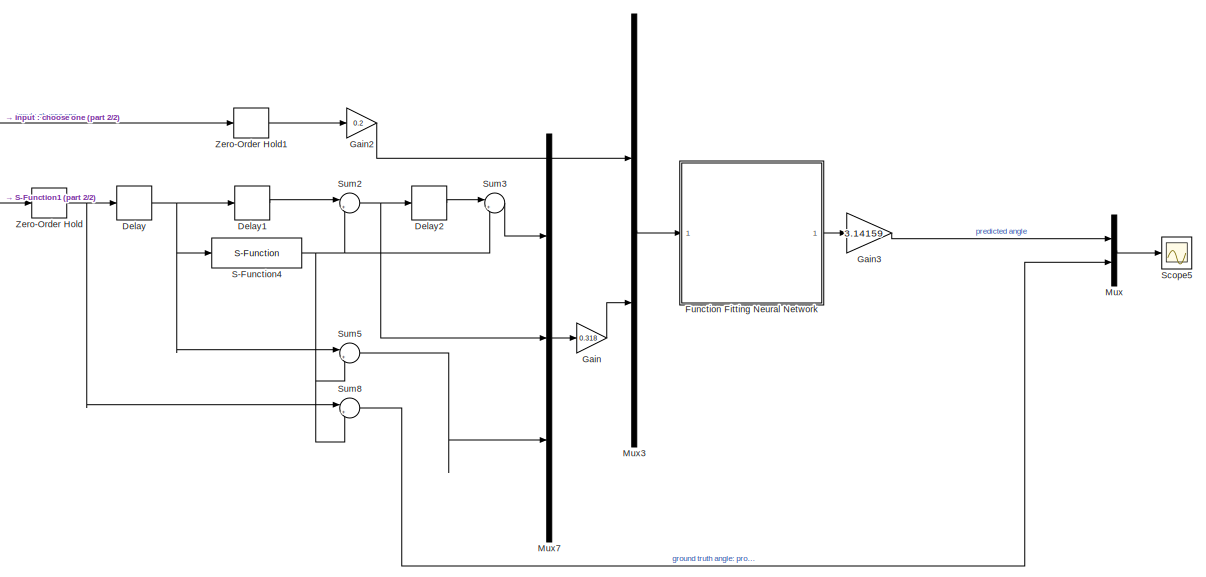
[diagram: root canvas - part 1/2, center side, full height]
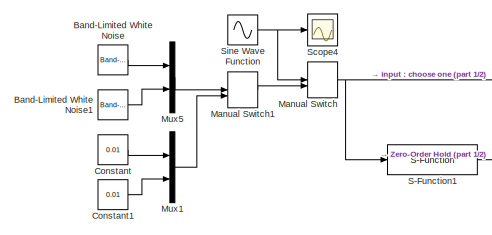
[diagram: root canvas - part 2/2, top left region]
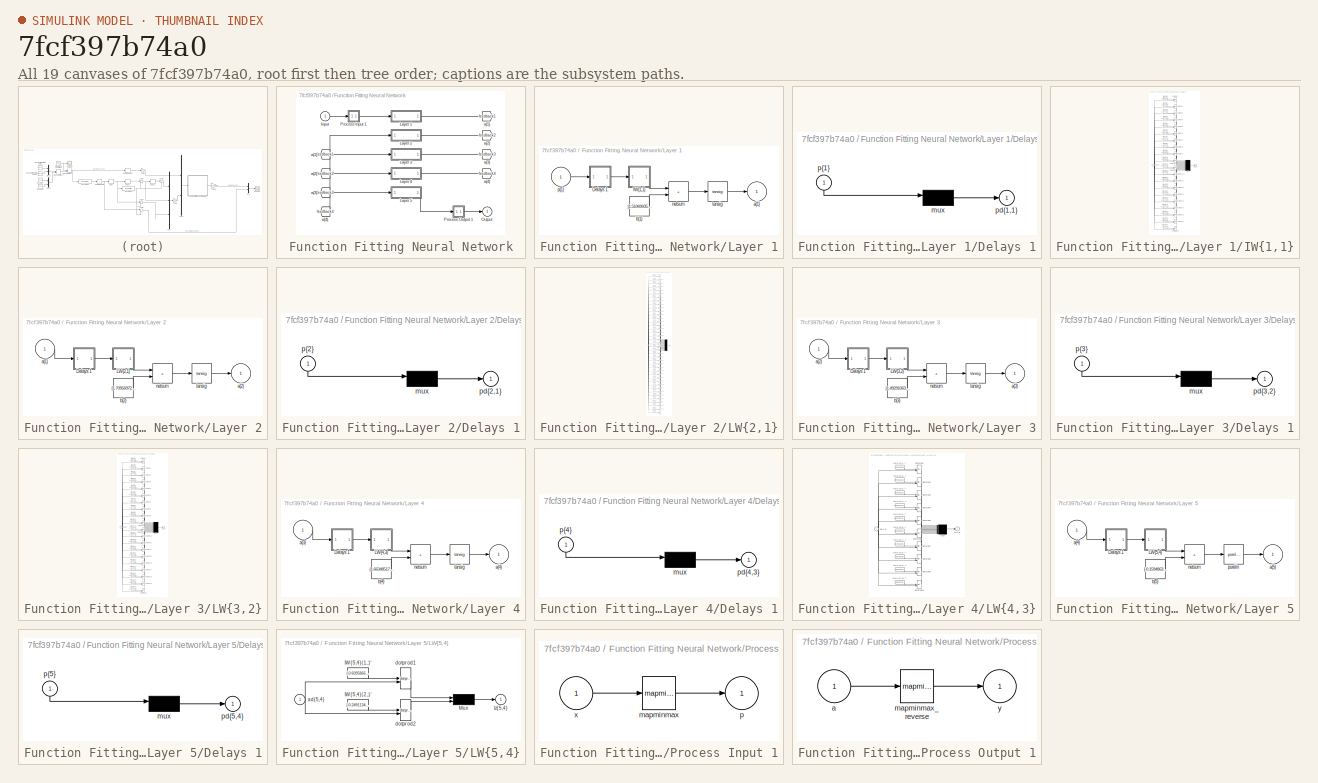
[diagram: thumbnail index - all 19 canvases of the model, root first then tree order]
MODEL slx_7fcf397b74a0
KIND model
CONFIG AbsTol = auto
CONFIG EnableMultiTasking = off
CONFIG FixedStep = auto
CONFIG MaxStep = auto
CONFIG MinStep = auto
CONFIG RelTol = 1e-3
CONFIG SampleTimeConstraint = Unconstrained
CONFIG SolverName = VariableStepAuto
CONFIG StartTime = 0.0
CONFIG StopTime = 10.0
BLOCK [Reference] Band-Limited White Noise  REF=simulink/Sources/Band-Limited
White Noise
  SourceBlock = simulink/Sources/Band-Limited\nWhite Noise
  SourceType = Band-Limited White Noise.
BLOCK [Reference] Band-Limited White Noise1  REF=simulink/Sources/Band-Limited
White Noise
  SourceBlock = simulink/Sources/Band-Limited\nWhite Noise
  SourceType = Band-Limited White Noise.
BLOCK [Constant] Constant
  Value = 0.01
BLOCK [Constant] Constant1
  Value = 0.01
BLOCK [Delay] Delay
  DelayLength = 1
  InitialCondition = 0
  InputPortMap = u0
  SampleTime = 0.01
BLOCK [Delay] Delay1
  DelayLength = 1
  InitialCondition = 0
  InputPortMap = u0
  SampleTime = 0.01
BLOCK [Delay] Delay2
  DelayLength = 1
  InitialCondition = 0
  InputPortMap = u0
  SampleTime = 0.01
BLOCK [SubSystem] Function Fitting Neural Network
BLOCK [From] Function Fitting Neural Network/ a{1} 
  GotoTag = feedback1
BLOCK [From] Function Fitting Neural Network/ a{2} 
  GotoTag = feedback2
BLOCK [From] Function Fitting Neural Network/ a{3} 
  GotoTag = feedback3
BLOCK [From] Function Fitting Neural Network/ a{4} 
  GotoTag = feedback4
BLOCK [Inport] Function Fitting Neural Network/Input
  PortDimensions = 8
BLOCK [SubSystem] Function Fitting Neural Network/Layer 1
BLOCK [SubSystem] Function Fitting Neural Network/Layer 1/Delays 1
BLOCK [Mux] Function Fitting Neural Network/Layer 1/Delays 1/mux
  Inputs = 1
BLOCK [Outport] Function Fitting Neural Network/Layer 1/Delays 1/pd{1,1}
BLOCK [Inport] Function Fitting Neural Network/Layer 1/Delays 1/p{1}
  NameLocation = left
  PortDimensions = 8
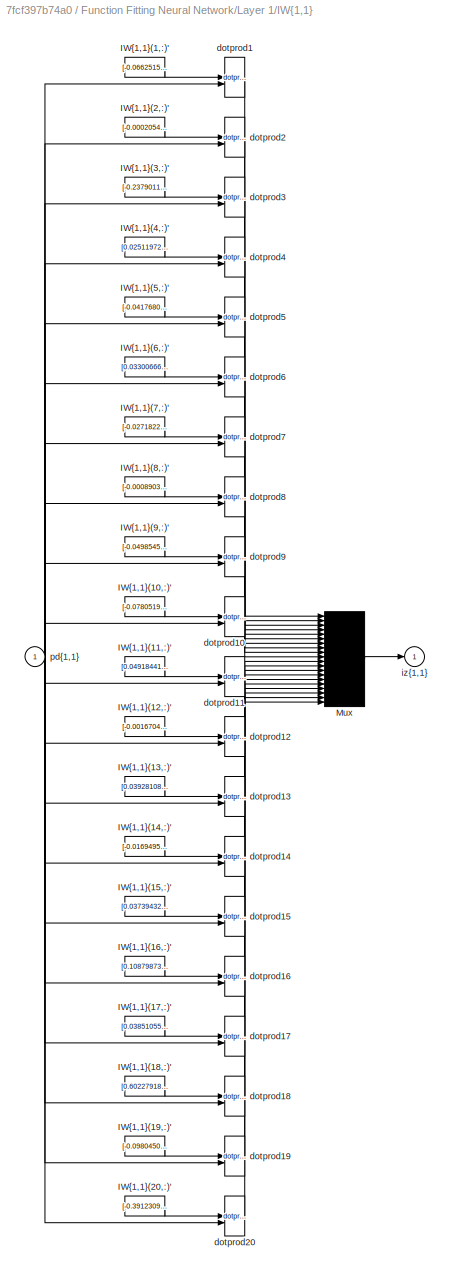
BLOCK [SubSystem] Function Fitting Neural Network/Layer 1/IW{1,1}
BLOCK [Constant] Function Fitting Neural Network/Layer 1/IW{1,1}/IW{1,1}(1,:)'
  Value = [-0.06625151497961288826754611136493622325360774993896484375;0.09601682548573871323061013072219793684780597686767578125;-0.60795817852282940663144472637213766574859619140625;0.32346487533894763277686479341355152428150177001953125;-0.417565763028574454818198091743397526443004608154296875;-1.2591612239835876518867507911636494100093841552734375;-0.01667000188667561513811143925067881355062127113342285...<+63ch>
BLOCK [Constant] Function Fitting Neural Network/Layer 1/IW{1,1}/IW{1,1}(10,:)'
  Value = [-0.07805198563980701720321775383126805536448955535888671875;0.132721065130629700679065763324615545570850372314453125;-0.61744434245293489116335194921703077852725982666015625;0.388935332600696181959420982821029610931873321533203125;0.153285063860497727805665135747403837740421295166015625;0.50930623689561549394255735023762099444866180419921875;0.53845382130426389100108508500852622091770172119140625...<+55ch>
BLOCK [Constant] Function Fitting Neural Network/Layer 1/IW{1,1}/IW{1,1}(11,:)'
  Value = [0.04918441610870837032987168413455947302281856536865234375;-0.04159552238430817838743536185575067065656185150146484375;0.12327812348590654056845750119464355520904064178466796875;0.06319189768471338009003801516882958821952342987060546875;0.056797211991516181883721259282538085244596004486083984375;-2.039553404596769592416194427642039954662322998046875;0.039085160146814422466032823422210640273988246...<+68ch>
BLOCK [Constant] Function Fitting Neural Network/Layer 1/IW{1,1}/IW{1,1}(12,:)'
  Value = [-0.00167045469516673259109673654876360160415060818195343017578125;0.01347407452638137159706133161307661794126033782958984375;-0.1851645838153682943616473721704096533358097076416015625;-0.11655323356809062229633155993724358268082141876220703125;-0.62722879354085936398632838972844183444976806640625;-1.1853717592089576537972561709466390311717987060546875;0.9552223822400919273079011873051058501005172...<+68ch>
BLOCK [Constant] Function Fitting Neural Network/Layer 1/IW{1,1}/IW{1,1}(13,:)'
  Value = [0.039281083063148487799498553840749082155525684356689453125;-0.0064241656681929791561369569308226346038281917572021484375;-0.211170003365020397811946395449922420084476470947265625;0.10621998061268729529604826211652834899723529815673828125;0.8272839260666058347482021417818032205104827880859375;-0.01424818209783466731177536956920448574237525463104248046875;-1.271980456418378757632581255165860056877...<+68ch>
BLOCK [Constant] Function Fitting Neural Network/Layer 1/IW{1,1}/IW{1,1}(14,:)'
  Value = [-0.0169495841255620262322256763809491530992090702056884765625;0.01062986111865275341836767353242976241745054721832275390625;1.30927265313393714762923991656862199306488037109375;0.63133840280491126950579428012133575975894927978515625;-0.96762180382265527978091768090962432324886322021484375;0.1618197698033403408857111571705900132656097412109375;0.8621758227105110750088101667643059045076370239257812...<+59ch>
BLOCK [Constant] Function Fitting Neural Network/Layer 1/IW{1,1}/IW{1,1}(15,:)'
  Value = [0.0373943282553832745396249492841889150440692901611328125;-0.050913543636903757505507428504643030464649200439453125;0.058094347573448119892436380951039609499275684356689453125;0.03971616806807866384421146221939125098288059234619140625;-0.2137823796082287952646794337852043099701404571533203125;0.2076334074508816851523107516186428256332874298095703125;-0.16366101463091795031878916688583558425307273...<+67ch>
BLOCK [Constant] Function Fitting Neural Network/Layer 1/IW{1,1}/IW{1,1}(16,:)'
  Value = [0.10879873244421413291949107815526076592504978179931640625;-0.10022134176543344430410087397831375710666179656982421875;0.144544047383925511329749724609428085386753082275390625;-0.165210772886099588330210963249555788934230804443359375;0.193923316401156842214703601712244562804698944091796875;0.259818504779267211990401165166986174881458282470703125;0.4893222518056248859785739568906137719750404357910...<+61ch>
BLOCK [Constant] Function Fitting Neural Network/Layer 1/IW{1,1}/IW{1,1}(17,:)'
  Value = [0.038510554429168834811303412379857036285102367401123046875;-0.0404876974188733418369423588956124149262905120849609375;-0.46506761858084322280859623788273893296718597412109375;-0.36389906569615682041529680645908229053020477294921875;-0.824413710546632483300300009432248771190643310546875;0.355521399529579895659736621382762677967548370361328125;0.4848339535763752650154856382869184017181396484375;-1...<+54ch>
BLOCK [Constant] Function Fitting Neural Network/Layer 1/IW{1,1}/IW{1,1}(18,:)'
  Value = [0.60227918242615363642045167580363340675830841064453125;-0.7151315300296705590454848788795061409473419189453125;0.492170888404110218328213477434474043548107147216796875;-0.41266629077125893676480927751981653273105621337890625;0.060275798823175567864307566878778743557631969451904296875;0.06632476508515561253176429090672172605991363525390625;0.468340613243486580952179565429105423390865325927734375;...<+54ch>
BLOCK [Constant] Function Fitting Neural Network/Layer 1/IW{1,1}/IW{1,1}(19,:)'
  Value = [-0.0980450133267183610019657180600916035473346710205078125;-0.1312971944880636787633676476616528816521167755126953125;0.39294263311544852523837789703975431621074676513671875;-0.41124084417166584248803928858251310884952545166015625;0.262763920808531115103079400796559639275074005126953125;-0.88060866943884053004154566224315203726291656494140625;-0.851659292591275707273723583057289943099021911621093...<+56ch>
BLOCK [Constant] Function Fitting Neural Network/Layer 1/IW{1,1}/IW{1,1}(2,:)'
  Value = [-0.0002054311605086852330660784904381443993770517408847808837890625;-0.008493020638395909482909473808831535279750823974609375;-0.1013652639524386389613397341236122883856296539306640625;-0.0288894493846899684530438179308475810103118419647216796875;-1.2951744345640339162173404474742710590362548828125;-0.213669199678342025539024007230182178318500518798828125;1.468152482022607507872180576669052243232...<+66ch>
BLOCK [Constant] Function Fitting Neural Network/Layer 1/IW{1,1}/IW{1,1}(20,:)'
  Value = [-0.39123095173069588614822578165330924093723297119140625;0.29743779210468834772740365224308334290981292724609375;-0.0275588411168332415857040729179061600007116794586181640625;-0.419880350563146986786478009889833629131317138671875;-0.615084781617870834935501989093609154224395751953125;0.09547250073506298451153639916810789145529270172119140625;1.09093140752721939890079738688655197620391845703125;0....<+52ch>
BLOCK [Constant] Function Fitting Neural Network/Layer 1/IW{1,1}/IW{1,1}(3,:)'
  Value = [-0.2379011132694721364355672221790882758796215057373046875;0.228186974793161689856191287617548368871212005615234375;0.6931252694762155552865579011267982423305511474609375;0.8036057418458846246522853107308037579059600830078125;0.17843631735289100515018390069599263370037078857421875;-1.2457006116102415926860658146324567496776580810546875;-0.58716353248966368649774949517450295388698577880859375;-0.3...<+49ch>
BLOCK [Constant] Function Fitting Neural Network/Layer 1/IW{1,1}/IW{1,1}(4,:)'
  Value = [0.0251197275992513548159568159690024913288652896881103515625;-0.03969457888013601387644513351915520615875720977783203125;0.2873518497159324169842875562608242034912109375;-0.03748538218542372957298169922069064341485500335693359375;0.80783229761712271876916702240123413503170013427734375;0.704192697723136529219800650025717914104461669921875;-1.0818965792260828440163322738953866064548492431640625;-1....<+53ch>
BLOCK [Constant] Function Fitting Neural Network/Layer 1/IW{1,1}/IW{1,1}(5,:)'
  Value = [-0.041768040591042283893319364551643957383930683135986328125;0.038218305831577432940537875083464314229786396026611328125;0.64242665473583604462959328884608112275600433349609375;1.0989998379862704336318302011932246387004852294921875;-0.407168576964892281466745771467685699462890625;1.3737044161391682717265894098090939223766326904296875;0.208672052560637644180729921572492457926273345947265625;-0.255...<+52ch>
BLOCK [Constant] Function Fitting Neural Network/Layer 1/IW{1,1}/IW{1,1}(6,:)'
  Value = [0.033006669381857943468272509335292852483689785003662109375;-0.1056122386414183045300063668037182651460170745849609375;0.2276256265538296741368640141445212066173553466796875;0.55126615490331232205534206514130346477031707763671875;0.403042148616312101427894276639563031494617462158203125;-0.705631924844520863615571215632371604442596435546875;-0.89528063381783606899944061296992003917694091796875;0.3...<+50ch>
BLOCK [Constant] Function Fitting Neural Network/Layer 1/IW{1,1}/IW{1,1}(7,:)'
  Value = [-0.0271822433727387409441167420709462021477520465850830078125;0.004464420990478035720927518781309117912314832210540771484375;0.0260878196663470972305187700612805201672017574310302734375;0.020967305039616114525902190734996111132204532623291015625;-0.1601202478582996746592215231430600397288799285888671875;-0.8928253539156403295606878600665368139743804931640625;-0.03838212462821905673893141397456929...<+79ch>
BLOCK [Constant] Function Fitting Neural Network/Layer 1/IW{1,1}/IW{1,1}(8,:)'
  Value = [-0.0008903569142505556033295732731858151964843273162841796875;-0.003561944625287568298721563309072735137306153774261474609375;0.036619504766960388197905018614619621075689792633056640625;-0.05389776702857436430083026834836346097290515899658203125;-0.384328242703213474040779829010716639459133148193359375;0.8598302102658286205638660248951055109500885009765625;0.63158029221419420551342227554414421319...<+69ch>
BLOCK [Constant] Function Fitting Neural Network/Layer 1/IW{1,1}/IW{1,1}(9,:)'
  Value = [-0.049854519928796685312999414918522234074771404266357421875;0.10068300480426829734970084473388851620256900787353515625;-0.1894841333097706803645365880583995021879673004150390625;-0.05050382235759136306807448590916465036571025848388671875;-0.307014760978943479496905410996987484395503997802734375;-0.05322280824341962812695783213712275028228759765625;-0.475975482587448650573236363925389014184474945...<+66ch>
BLOCK [Mux] Function Fitting Neural Network/Layer 1/IW{1,1}/Mux
  Inputs = 20
BLOCK [Reference] Function Fitting Neural Network/Layer 1/IW{1,1}/dotprod1  REF=neural/Weight Functions/dotprod
  SourceBlock = neural/Weight Functions/dotprod
  SourceType = DOTPROD
BLOCK [Reference] Function Fitting Neural Network/Layer 1/IW{1,1}/dotprod10  REF=neural/Weight Functions/dotprod
  SourceBlock = neural/Weight Functions/dotprod
  SourceType = DOTPROD
BLOCK [Reference] Function Fitting Neural Network/Layer 1/IW{1,1}/dotprod11  REF=neural/Weight Functions/dotprod
  SourceBlock = neural/Weight Functions/dotprod
  SourceType = DOTPROD
BLOCK [Reference] Function Fitting Neural Network/Layer 1/IW{1,1}/dotprod12  REF=neural/Weight Functions/dotprod
  SourceBlock = neural/Weight Functions/dotprod
  SourceType = DOTPROD
BLOCK [Reference] Function Fitting Neural Network/Layer 1/IW{1,1}/dotprod13  REF=neural/Weight Functions/dotprod
  SourceBlock = neural/Weight Functions/dotprod
  SourceType = DOTPROD
BLOCK [Reference] Function Fitting Neural Network/Layer 1/IW{1,1}/dotprod14  REF=neural/Weight Functions/dotprod
  SourceBlock = neural/Weight Functions/dotprod
  SourceType = DOTPROD
BLOCK [Reference] Function Fitting Neural Network/Layer 1/IW{1,1}/dotprod15  REF=neural/Weight Functions/dotprod
  SourceBlock = neural/Weight Functions/dotprod
  SourceType = DOTPROD
BLOCK [Reference] Function Fitting Neural Network/Layer 1/IW{1,1}/dotprod16  REF=neural/Weight Functions/dotprod
  SourceBlock = neural/Weight Functions/dotprod
  SourceType = DOTPROD
BLOCK [Reference] Function Fitting Neural Network/Layer 1/IW{1,1}/dotprod17  REF=neural/Weight Functions/dotprod
  SourceBlock = neural/Weight Functions/dotprod
  SourceType = DOTPROD
BLOCK [Reference] Function Fitting Neural Network/Layer 1/IW{1,1}/dotprod18  REF=neural/Weight Functions/dotprod
  SourceBlock = neural/Weight Functions/dotprod
  SourceType = DOTPROD
BLOCK [Reference] Function Fitting Neural Network/Layer 1/IW{1,1}/dotprod19  REF=neural/Weight Functions/dotprod
  SourceBlock = neural/Weight Functions/dotprod
  SourceType = DOTPROD
BLOCK [Reference] Function Fitting Neural Network/Layer 1/IW{1,1}/dotprod2  REF=neural/Weight Functions/dotprod
  SourceBlock = neural/Weight Functions/dotprod
  SourceType = DOTPROD
BLOCK [Reference] Function Fitting Neural Network/Layer 1/IW{1,1}/dotprod20  REF=neural/Weight Functions/dotprod
  SourceBlock = neural/Weight Functions/dotprod
  SourceType = DOTPROD
BLOCK [Reference] Function Fitting Neural Network/Layer 1/IW{1,1}/dotprod3  REF=neural/Weight Functions/dotprod
  SourceBlock = neural/Weight Functions/dotprod
  SourceType = DOTPROD
BLOCK [Reference] Function Fitting Neural Network/Layer 1/IW{1,1}/dotprod4  REF=neural/Weight Functions/dotprod
  SourceBlock = neural/Weight Functions/dotprod
  SourceType = DOTPROD
BLOCK [Reference] Function Fitting Neural Network/Layer 1/IW{1,1}/dotprod5  REF=neural/Weight Functions/dotprod
  SourceBlock = neural/Weight Functions/dotprod
  SourceType = DOTPROD
BLOCK [Reference] Function Fitting Neural Network/Layer 1/IW{1,1}/dotprod6  REF=neural/Weight Functions/dotprod
  SourceBlock = neural/Weight Functions/dotprod
  SourceType = DOTPROD
BLOCK [Reference] Function Fitting Neural Network/Layer 1/IW{1,1}/dotprod7  REF=neural/Weight Functions/dotprod
  SourceBlock = neural/Weight Functions/dotprod
  SourceType = DOTPROD
BLOCK [Reference] Function Fitting Neural Network/Layer 1/IW{1,1}/dotprod8  REF=neural/Weight Functions/dotprod
  SourceBlock = neural/Weight Functions/dotprod
  SourceType = DOTPROD
BLOCK [Reference] Function Fitting Neural Network/Layer 1/IW{1,1}/dotprod9  REF=neural/Weight Functions/dotprod
  SourceBlock = neural/Weight Functions/dotprod
  SourceType = DOTPROD
BLOCK [Outport] Function Fitting Neural Network/Layer 1/IW{1,1}/iz{1,1}
BLOCK [Inport] Function Fitting Neural Network/Layer 1/IW{1,1}/pd{1,1}
  PortDimensions = 8
BLOCK [Outport] Function Fitting Neural Network/Layer 1/a{1}
  InitialOutput = [0;0;0;0;0;0;0;0;0;0;0;0;0;0;0;0;0;0;0;0]
BLOCK [Constant] Function Fitting Neural Network/Layer 1/b{1}
  Value = [1.5106993535478014933914892026223242282867431640625;-0.89166932865957260201383860476198606193065643310546875;1.33986604584856383581836780649609863758087158203125;-0.86448592510228039476061212553759105503559112548828125;1.2265055544564080758362933920579962432384490966796875;0.93764743560269370181714521095273084938526153564453125;-0.921646036829240511423222415032796561717987060546875;-0.37634141104...<+711ch>
BLOCK [Sum] Function Fitting Neural Network/Layer 1/netsum
  IconShape = rectangular
  InputSameDT = on
  Inputs = 2
  OutDataTypeStr = Inherit: Same as first input
  SaturateOnIntegerOverflow = on
BLOCK [Inport] Function Fitting Neural Network/Layer 1/p{1}
  PortDimensions = 8
BLOCK [Reference] Function Fitting Neural Network/Layer 1/tansig  REF=neural/Transfer Functions/tansig
  SourceBlock = neural/Transfer Functions/tansig
  SourceType = TANSIG
BLOCK [SubSystem] Function Fitting Neural Network/Layer 2
BLOCK [SubSystem] Function Fitting Neural Network/Layer 2/Delays 1
BLOCK [Mux] Function Fitting Neural Network/Layer 2/Delays 1/mux
  Inputs = 1
BLOCK [Outport] Function Fitting Neural Network/Layer 2/Delays 1/pd{2,1}
BLOCK [Inport] Function Fitting Neural Network/Layer 2/Delays 1/p{2}
  NameLocation = left
  PortDimensions = 20
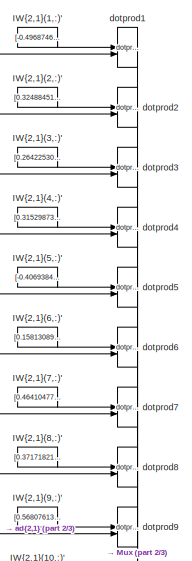
[diagram: Function Fitting Neural Network/Layer 2/LW{2,1} - part 1/3, top center region]
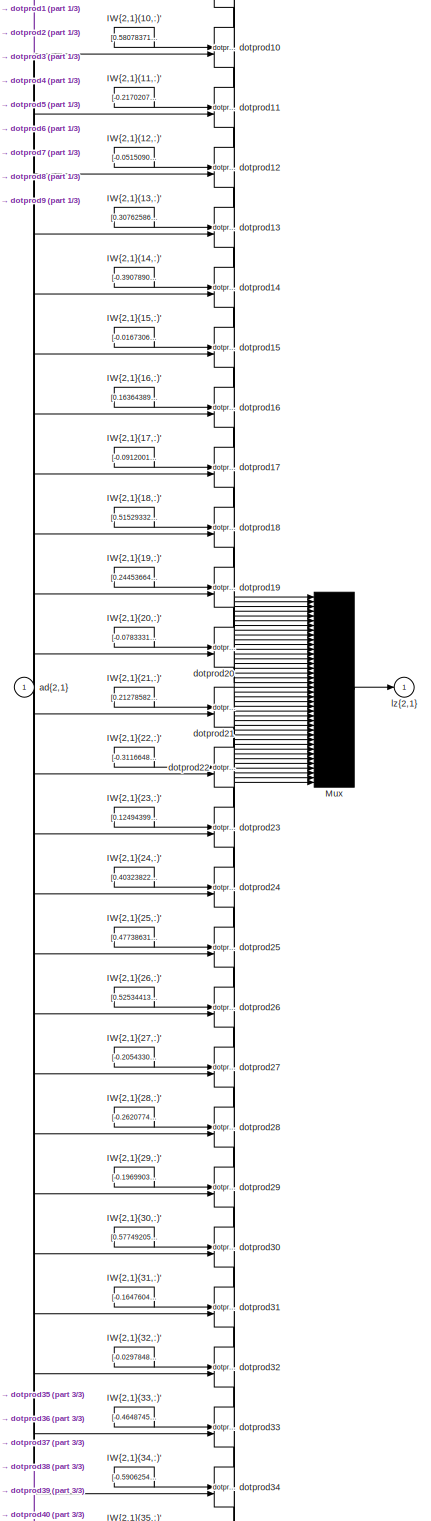
[diagram: Function Fitting Neural Network/Layer 2/LW{2,1} - part 2/3, full width, middle band]
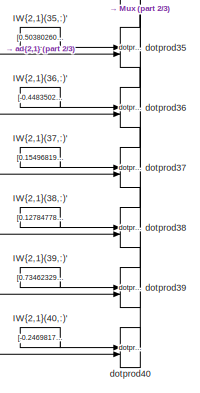
[diagram: Function Fitting Neural Network/Layer 2/LW{2,1} - part 3/3, bottom center region]
BLOCK [SubSystem] Function Fitting Neural Network/Layer 2/LW{2,1}
BLOCK [Constant] Function Fitting Neural Network/Layer 2/LW{2,1}/IW{2,1}(1,:)'
  Value = [-0.4968746070425640315448845285573042929172515869140625;0.56916069057106966067038911205600015819072723388671875;0.040709113134785222809508553609703085385262966156005859375;-0.5318632027325456146371607246692292392253875732421875;-0.23023417760780062746306384724448435008525848388671875;-0.194367719375184988539473351920605637133121490478515625;-0.38349468032621908397672427781799342483282089233398437...<+752ch>
BLOCK [Constant] Function Fitting Neural Network/Layer 2/LW{2,1}/IW{2,1}(10,:)'
  Value = [0.58078371106888415642544032380101270973682403564453125;-0.8435150344019255452820971186156384646892547607421875;0.322187675994737077189711271785199642181396484375;0.041287519302728455106166194354955223388969898223876953125;-0.55293955459592403212099043230409733951091766357421875;0.339684161769700898592105886564240790903568267822265625;0.391497376312855360769304979839944280683994293212890625;-0.50...<+735ch>
BLOCK [Constant] Function Fitting Neural Network/Layer 2/LW{2,1}/IW{2,1}(11,:)'
  Value = [-0.21702074684858174702384303600410930812358856201171875;0.49430481554682514921950087227742187678813934326171875;-0.43712527947816670614855638632434420287609100341796875;-0.259475318807909527407673522247932851314544677734375;0.1673432076896651243824720722841448150575160980224609375;0.2914253227037419957667907510767690837383270263671875;-0.07719773491012608956918228386712144128978252410888671875;-...<+741ch>
BLOCK [Constant] Function Fitting Neural Network/Layer 2/LW{2,1}/IW{2,1}(12,:)'
  Value = [-0.051509080070098585413251868203587946482002735137939453125;1.0007565112562151199426807579584419727325439453125;0.146588175210599747089190714177675545215606689453125;-0.09044749733768486787965912299114279448986053466796875;-0.369387675139689009018439946885337121784687042236328125;0.182831752430946570253667005090392194688320159912109375;-0.431481515258968550963203369974507950246334075927734375;-0...<+741ch>
BLOCK [Constant] Function Fitting Neural Network/Layer 2/LW{2,1}/IW{2,1}(13,:)'
  Value = [0.307625866408529013984463063025032170116901397705078125;0.6058115746206329532697054673917591571807861328125;-0.0496748242360259550931544936247519217431545257568359375;-0.09097933971164161304212569802984944544732570648193359375;-0.1497380829123460543872425887457211501896381378173828125;0.293098807607959976895273257468943484127521514892578125;0.15126844139537160005559712772083003073930740356445312...<+739ch>
BLOCK [Constant] Function Fitting Neural Network/Layer 2/LW{2,1}/IW{2,1}(14,:)'
  Value = [-0.390789052074277554194026151890284381806850433349609375;-0.20091133910689851216346824003267101943492889404296875;-0.1485077227760169815695689976564608514308929443359375;0.232085630110332175046750080582569353282451629638671875;-0.1842270174249512060260514090259675867855548858642578125;0.51856633803011842331898151314817368984222412109375;0.431927804636834500318087748382822610437870025634765625;0....<+745ch>
BLOCK [Constant] Function Fitting Neural Network/Layer 2/LW{2,1}/IW{2,1}(15,:)'
  Value = [-0.0167306667545834841792640190760721452534198760986328125;-0.039291303374336263021238124792944290675222873687744140625;0.00585840233007252873809189708254052675329148769378662109375;0.1781513474557755161153949075014679692685604095458984375;0.202591338413276311758437486787443049252033233642578125;-0.59274723626389380637391468553687445819377899169921875;-0.599187923939676014839506024145521223545074...<+744ch>
BLOCK [Constant] Function Fitting Neural Network/Layer 2/LW{2,1}/IW{2,1}(16,:)'
  Value = [0.16364389599362016980421685730107128620147705078125;0.484976786410236837543408228157204575836658477783203125;-0.378406487933076685070687972256564535200595855712890625;0.47429480173248317331768930671387352049350738525390625;0.14199488037980068089183305346523411571979522705078125;0.07788614391184438268123102488971198908984661102294921875;-0.367931475716799460951023093002731911838054656982421875;-0...<+746ch>
BLOCK [Constant] Function Fitting Neural Network/Layer 2/LW{2,1}/IW{2,1}(17,:)'
  Value = [-0.0912001644583615711514568147322279401123523712158203125;0.3740885402902345280296003693365491926670074462890625;0.2537110444612753479276534562814049422740936279296875;0.466171628270556748230291077561560086905956268310546875;0.351289757656616241643376952197286300361156463623046875;-0.27771490537902876472031721277744509279727935791015625;0.6351783716027572523898925282992422580718994140625;0.05096...<+742ch>
BLOCK [Constant] Function Fitting Neural Network/Layer 2/LW{2,1}/IW{2,1}(18,:)'
  Value = [0.51529332288692530905649391570477746427059173583984375;-0.59663655003374904683965951335267163813114166259765625;-0.09828123458141320434311438702934538014233112335205078125;-0.04635993235705655746148323714805883355438709259033203125;-0.1578610916011248532786481746370554901659488677978515625;0.06406291831360888533453135096351616084575653076171875;-0.278021280678705295930086549560655839741230010986...<+754ch>
BLOCK [Constant] Function Fitting Neural Network/Layer 2/LW{2,1}/IW{2,1}(19,:)'
  Value = [0.244536647846536336903255914876353926956653594970703125;0.290524791294050455103814556423458270728588104248046875;-0.422710330991319771509751035409863106906414031982421875;0.82033313652161254925232469759066589176654815673828125;0.21264804963832173445581474879872985184192657470703125;0.042373535958401452317101387734510353766381740570068359375;-0.0624811987812865718416865945528115844354033470153808...<+764ch>
BLOCK [Constant] Function Fitting Neural Network/Layer 2/LW{2,1}/IW{2,1}(2,:)'
  Value = [0.324884517956297858010117352023371495306491851806640625;-0.7650751356433753702646072269999422132968902587890625;-0.1690517355976107471970948381567723117768764495849609375;-0.32283844901716574060657194422674365341663360595703125;0.069162927369543825140141279916861094534397125244140625;-0.412143797414273704848852730719954706728458404541015625;0.0852270473923371074675969794043339788913726806640625;...<+751ch>
BLOCK [Constant] Function Fitting Neural Network/Layer 2/LW{2,1}/IW{2,1}(20,:)'
  Value = [-0.07833312765688836554200946693526930175721645355224609375;0.301623823385605061009329119769972749054431915283203125;0.05933668718457592305970393908864934928715229034423828125;0.00835316308405177100626648467596169211901724338531494140625;0.0167392838015908117232921625827657408080995082855224609375;-0.7019927751008514515973502057022415101528167724609375;0.072974946328092565872580621544329915195703...<+753ch>
BLOCK [Constant] Function Fitting Neural Network/Layer 2/LW{2,1}/IW{2,1}(21,:)'
  Value = [0.21278582834080295160816831412375904619693756103515625;0.20176796693875953536689848988316953182220458984375;-0.290132449895722677180032178512192331254482269287109375;0.01730017909664273434433567899759509600698947906494140625;-0.0255491985468142036863614663388943881727755069732666015625;-0.316980072732619799769082646889728493988513946533203125;-0.63255235393461961557193262706277891993522644042968...<+740ch>
BLOCK [Constant] Function Fitting Neural Network/Layer 2/LW{2,1}/IW{2,1}(22,:)'
  Value = [-0.311664897589316647330548448735498823225498199462890625;-0.366022306939570551964635569675010628998279571533203125;-0.6307816225319076153255082317627966403961181640625;0.301842361176092255359293403671472333371639251708984375;-0.0179448867873464312783227114778128452599048614501953125;0.60466309495422099207218025185284204781055450439453125;-0.1800741521989077942311752167370286770164966583251953125...<+737ch>
BLOCK [Constant] Function Fitting Neural Network/Layer 2/LW{2,1}/IW{2,1}(23,:)'
  Value = [0.124943993723110213789340150469797663390636444091796875;0.5362806037665015512772015426889993250370025634765625;-0.6261139919266958120402932763681747019290924072265625;-0.50264420487557226469021998127573169767856597900390625;0.687688118203503950809363232110626995563507080078125;0.126338504636680781789692673555691726505756378173828125;-0.042460105667911036964046189723376301117241382598876953125;-0...<+747ch>
BLOCK [Constant] Function Fitting Neural Network/Layer 2/LW{2,1}/IW{2,1}(24,:)'
  Value = [0.403238226447724279477569098162348382174968719482421875;-1.2038858442008206761641986304312013089656829833984375;0.49819049952877592080113799966056831181049346923828125;-0.2351300347746427821249426415306515991687774658203125;-0.62632903937094452917477838127524591982364654541015625;-0.341813707910361086472761371624073944985866546630859375;-0.292359394208139777848742824062355794012546539306640625;-...<+741ch>
BLOCK [Constant] Function Fitting Neural Network/Layer 2/LW{2,1}/IW{2,1}(25,:)'
  Value = [0.477386316924885367729558538485434837639331817626953125;0.59957744707013704843490131679573096334934234619140625;-0.2303048963194166132151252668336383067071437835693359375;-0.09775342706080149268732526479652733542025089263916015625;-0.554532379634169902971052579232491552829742431640625;0.2448081862759779181448749341143411584198474884033203125;-0.043742728538962279138946342982308124192059040069580...<+747ch>
BLOCK [Constant] Function Fitting Neural Network/Layer 2/LW{2,1}/IW{2,1}(26,:)'
  Value = [0.52534413830436310632876484305597841739654541015625;0.774617353742316883113971925922669470310211181640625;0.149192163147182477178631643255357630550861358642578125;-0.270933091806145165403307828455581329762935638427734375;0.48694403701026001130003351136110723018646240234375;0.228932581270872237411140304175205528736114501953125;-0.424760970411574512173302764495019800961017608642578125;-0.252816110...<+740ch>
BLOCK [Constant] Function Fitting Neural Network/Layer 2/LW{2,1}/IW{2,1}(27,:)'
  Value = [-0.2054330965945788955995254809749894775450229644775390625;-0.11547580199089994834604766538177500478923320770263671875;0.37077826159594262644958462260547094047069549560546875;-0.5292604365439015356997742856037802994251251220703125;0.430282102900566842951235457803704775869846343994140625;-0.25466768616755686149843995735864154994487762451171875;-0.102421964713454480278009839366859523579478263854980...<+755ch>
BLOCK [Constant] Function Fitting Neural Network/Layer 2/LW{2,1}/IW{2,1}(28,:)'
  Value = [-0.2620774429397119131834870131569914519786834716796875;0.50303114903602186291919906580005772411823272705078125;-0.0931472503635712156810910755666554905474185943603515625;-0.63736082473591626484932248786208219826221466064453125;0.306060281269170009199598325722035951912403106689453125;-0.140868383078661507656903495444566942751407623291015625;-0.45297657223835413597967658461129758507013320922851562...<+732ch>
BLOCK [Constant] Function Fitting Neural Network/Layer 2/LW{2,1}/IW{2,1}(29,:)'
  Value = [-0.1969903575781161431113019943950348533689975738525390625;0.312207829458112040565964662164333276450634002685546875;0.06991103655359076629594028418068774044513702392578125;-0.15448496218265816981585203393478877842426300048828125;0.1508534361722200234368074234225787222385406494140625;-0.01877382181952647055567240386153571307659149169921875;0.4703407572531805858062625702586956322193145751953125;0.9...<+748ch>
BLOCK [Constant] Function Fitting Neural Network/Layer 2/LW{2,1}/IW{2,1}(3,:)'
  Value = [0.26422530408157030024085543118417263031005859375;-0.315691573560363536454786981266806833446025848388671875;0.1345717512352333777858603980348561890423297882080078125;-0.054511460706667069775477330040303058922290802001953125;0.474569605745991662804073030201834626495838165283203125;-0.30999304480150213780831336407572962343692779541015625;-0.245946085231444067087380744851543568074703216552734375;0.9...<+730ch>
BLOCK [Constant] Function Fitting Neural Network/Layer 2/LW{2,1}/IW{2,1}(30,:)'
  Value = [0.57749205982957552141243695587036199867725372314453125;-0.01624429664900541026018032653155387379229068756103515625;-0.230512017095780230580004399598692543804645538330078125;0.07619275065580778660834226911902078427374362945556640625;0.057865663972044380225501214454197906889021396636962890625;-0.44431118154242310591683917664340697228908538818359375;-0.5953989183077877944683109490142669528722763061...<+752ch>
BLOCK [Constant] Function Fitting Neural Network/Layer 2/LW{2,1}/IW{2,1}(31,:)'
  Value = [-0.1647604576274670495905638745171017944812774658203125;0.73534795567854083220282745969598181545734405517578125;0.46311977856801556097110506016178987920284271240234375;-0.51280633358191474169274215455516241490840911865234375;0.10843778820503501003624791110269143246114253997802734375;0.23993340171909693925300643968512304127216339111328125;0.1224467420087177738086126055350177921354770660400390625;0...<+741ch>
BLOCK [Constant] Function Fitting Neural Network/Layer 2/LW{2,1}/IW{2,1}(32,:)'
  Value = [-0.0297848910391571956857159619858066434971988201141357421875;-0.485177893725928399693003711945493705570697784423828125;-0.1497695360104481510088447748785256408154964447021484375;0.37801371623823687428966877632774412631988525390625;-0.18721260364467184889036843742360360920429229736328125;0.6263677319087779249429104311275295913219451904296875;-0.56859987547577173216950541245751082897186279296875;0...<+740ch>
BLOCK [Constant] Function Fitting Neural Network/Layer 2/LW{2,1}/IW{2,1}(33,:)'
  Value = [-0.46487457071894355831176426363526843488216400146484375;0.5713195016531382730562427241238765418529510498046875;-0.08713683263412171087214375120311160571873188018798828125;-0.438489836957696332842004949270631186664104461669921875;0.11786615410145513671569261759941582567989826202392578125;-0.2623388079701169939284000065526925027370452880859375;-0.208018972891395315105711461001192219555377960205078...<+748ch>
BLOCK [Constant] Function Fitting Neural Network/Layer 2/LW{2,1}/IW{2,1}(34,:)'
  Value = [-0.5906254184010129026916047223494388163089752197265625;-0.1689331756521232075218819090878241695463657379150390625;-0.347194279663801008695145355886779725551605224609375;0.226775574626792486565562967371079139411449432373046875;-0.2440060280782810619992773126796237193048000335693359375;0.3651966246490818690517698996700346469879150390625;0.6107288270119413109426886876462958753108978271484375;0.0734...<+738ch>
BLOCK [Constant] Function Fitting Neural Network/Layer 2/LW{2,1}/IW{2,1}(35,:)'
  Value = [0.50380260640656227000278022387647069990634918212890625;-0.25424884803673697408754605930880643427371978759765625;0.458649242757129205205757216390338726341724395751953125;-0.30390833160497499054741865620599128305912017822265625;0.28896957251928034882126894444809295237064361572265625;0.303470539531898897411821280911681242287158966064453125;0.50905192618743921872948021700722165405750274658203125;-0....<+728ch>
BLOCK [Constant] Function Fitting Neural Network/Layer 2/LW{2,1}/IW{2,1}(36,:)'
  Value = [-0.4483502411574822321682631809380836784839630126953125;-0.300268721506864288972593612925265915691852569580078125;-0.044939296467709721749628215548000298440456390380859375;-0.32246251032972772510021286507253535091876983642578125;-0.2631099684479070166531755603500641882419586181640625;-0.29325749796676625624769485511933453381061553955078125;-0.186764148255831291534079241500876378268003463745117187...<+745ch>
BLOCK [Constant] Function Fitting Neural Network/Layer 2/LW{2,1}/IW{2,1}(37,:)'
  Value = [0.154968194830164496256230677317944355309009552001953125;0.6049212918876227806919132490293122828006744384765625;-0.313339753382427144146049613482318818569183349609375;-0.496081203044421992220947004170739091932773590087890625;-0.28864331473780924230965183596708811819553375244140625;0.414117015257641718495307259217952378094196319580078125;-0.53793704489330540496894172974862158298492431640625;0.5787...<+737ch>
BLOCK [Constant] Function Fitting Neural Network/Layer 2/LW{2,1}/IW{2,1}(38,:)'
  Value = [0.127847780546944844726198198259226046502590179443359375;-0.30081304016282872648702095830230973660945892333984375;-0.2064585771239216549499673192258342169225215911865234375;-0.037842070290617306482783277488124440424144268035888671875;0.264011724446635176466458005961612798273563385009765625;0.218240533837157746344104225499904714524745941162109375;-0.466497226227350514360381339429295621812343597412...<+742ch>
BLOCK [Constant] Function Fitting Neural Network/Layer 2/LW{2,1}/IW{2,1}(39,:)'
  Value = [0.734623293494786278046149163856171071529388427734375;-0.2907616245802226995209593951585702598094940185546875;-0.0892159257315402742793963852818706072866916656494140625;-0.08278141866536782578211983718574629165232181549072265625;-0.298459696938264518184524831667658872902393341064453125;-0.431196937651310729933129550772719085216522216796875;-0.324378595637247801874991637305356562137603759765625;0....<+724ch>
BLOCK [Constant] Function Fitting Neural Network/Layer 2/LW{2,1}/IW{2,1}(4,:)'
  Value = [0.31529873753670678571126018141512759029865264892578125;-0.344581473004466010134905218365020118653774261474609375;-0.03810425354109921169953878461456042714416980743408203125;-0.1790590497193667307573861080527422018349170684814453125;-0.00156724987412971646962012162163091488764621317386627197265625;0.238377477468428800033706238536979071795940399169921875;-0.7166257170648142604818531253840774297714...<+749ch>
BLOCK [Constant] Function Fitting Neural Network/Layer 2/LW{2,1}/IW{2,1}(40,:)'
  Value = [-0.246981779712137583526754269769298844039440155029296875;-0.43508978343923576659335594740696251392364501953125;-0.0217018770797686132156822935712625621818006038665771484375;-0.30786262727980384656945034294039942324161529541015625;0.398917968325185778866170949186198413372039794921875;0.3138577533720294798769145927508361637592315673828125;0.292744343873020118618200058335787616670131683349609375;-0...<+739ch>
BLOCK [Constant] Function Fitting Neural Network/Layer 2/LW{2,1}/IW{2,1}(5,:)'
  Value = [-0.406938409706985748659491264334064908325672149658203125;-0.361275336177264427828248471996630541980266571044921875;-0.06249221022825206250939089613893884234130382537841796875;0.13437571577921836318836312784696929156780242919921875;0.14277884948727315173044871698948554694652557373046875;-0.46479620971013613228706162772141396999359130859375;-0.62923519437743902216197966481558978557586669921875;-0....<+742ch>
BLOCK [Constant] Function Fitting Neural Network/Layer 2/LW{2,1}/IW{2,1}(6,:)'
  Value = [0.15813089944946678855330901569686830043792724609375;-0.0185396910089317169811895524844658211804926395416259765625;-0.29482607884004574660963271526270546019077301025390625;-0.60953765217926447750329543850966729223728179931640625;-0.196760129837860342494337828611605800688266754150390625;-0.290938716310868372705300544112105853855609893798828125;-0.489502623373644474291666028875624760985374450683593...<+759ch>
BLOCK [Constant] Function Fitting Neural Network/Layer 2/LW{2,1}/IW{2,1}(7,:)'
  Value = [0.464104777372029875248671260123956017196178436279296875;0.06488651291904566631441042545702657662332057952880859375;-0.188009825533936358876729855182929895818233489990234375;0.09512866288776429535278822413602028973400592803955078125;0.166401747543613087731984023776021786034107208251953125;-0.54209388115376355710139932853053323924541473388671875;-0.3468285343444961754677535736846039071679115295410...<+754ch>
BLOCK [Constant] Function Fitting Neural Network/Layer 2/LW{2,1}/IW{2,1}(8,:)'
  Value = [0.37171821308070729372730056638829410076141357421875;0.2023391672433236809780510156997479498386383056640625;-0.307862910479162754651127897886908613145351409912109375;-0.455208631547062536615300132325501181185245513916015625;-0.1722959774566214241620087932460592128336429595947265625;-0.037868141078373086794162105661598616279661655426025390625;-0.2064189333829798689290413449270999990403652191162109...<+742ch>
BLOCK [Constant] Function Fitting Neural Network/Layer 2/LW{2,1}/IW{2,1}(9,:)'
  Value = [0.56807613474989582247332009501405991613864898681640625;0.411436456363137692537890188759774900972843170166015625;-0.3570160656113479102913288443232886493206024169921875;-0.1959290736823738610095091416951618157327175140380859375;0.329364800880741770416904046214767731726169586181640625;-0.2461055731906857946267308534515905193984508514404296875;-0.571983854703026484145311769680120050907135009765625;...<+745ch>
BLOCK [Mux] Function Fitting Neural Network/Layer 2/LW{2,1}/Mux
  Inputs = 40
BLOCK [Inport] Function Fitting Neural Network/Layer 2/LW{2,1}/ad{2,1}
  PortDimensions = 20
BLOCK [Reference] Function Fitting Neural Network/Layer 2/LW{2,1}/dotprod1  REF=neural/Weight Functions/dotprod
  SourceBlock = neural/Weight Functions/dotprod
  SourceType = DOTPROD
BLOCK [Reference] Function Fitting Neural Network/Layer 2/LW{2,1}/dotprod10  REF=neural/Weight Functions/dotprod
  SourceBlock = neural/Weight Functions/dotprod
  SourceType = DOTPROD
BLOCK [Reference] Function Fitting Neural Network/Layer 2/LW{2,1}/dotprod11  REF=neural/Weight Functions/dotprod
  SourceBlock = neural/Weight Functions/dotprod
  SourceType = DOTPROD
BLOCK [Reference] Function Fitting Neural Network/Layer 2/LW{2,1}/dotprod12  REF=neural/Weight Functions/dotprod
  SourceBlock = neural/Weight Functions/dotprod
  SourceType = DOTPROD
BLOCK [Reference] Function Fitting Neural Network/Layer 2/LW{2,1}/dotprod13  REF=neural/Weight Functions/dotprod
  SourceBlock = neural/Weight Functions/dotprod
  SourceType = DOTPROD
BLOCK [Reference] Function Fitting Neural Network/Layer 2/LW{2,1}/dotprod14  REF=neural/Weight Functions/dotprod
  SourceBlock = neural/Weight Functions/dotprod
  SourceType = DOTPROD
BLOCK [Reference] Function Fitting Neural Network/Layer 2/LW{2,1}/dotprod15  REF=neural/Weight Functions/dotprod
  SourceBlock = neural/Weight Functions/dotprod
  SourceType = DOTPROD
BLOCK [Reference] Function Fitting Neural Network/Layer 2/LW{2,1}/dotprod16  REF=neural/Weight Functions/dotprod
  SourceBlock = neural/Weight Functions/dotprod
  SourceType = DOTPROD
BLOCK [Reference] Function Fitting Neural Network/Layer 2/LW{2,1}/dotprod17  REF=neural/Weight Functions/dotprod
  SourceBlock = neural/Weight Functions/dotprod
  SourceType = DOTPROD
BLOCK [Reference] Function Fitting Neural Network/Layer 2/LW{2,1}/dotprod18  REF=neural/Weight Functions/dotprod
  SourceBlock = neural/Weight Functions/dotprod
  SourceType = DOTPROD
BLOCK [Reference] Function Fitting Neural Network/Layer 2/LW{2,1}/dotprod19  REF=neural/Weight Functions/dotprod
  SourceBlock = neural/Weight Functions/dotprod
  SourceType = DOTPROD
BLOCK [Reference] Function Fitting Neural Network/Layer 2/LW{2,1}/dotprod2  REF=neural/Weight Functions/dotprod
  SourceBlock = neural/Weight Functions/dotprod
  SourceType = DOTPROD
BLOCK [Reference] Function Fitting Neural Network/Layer 2/LW{2,1}/dotprod20  REF=neural/Weight Functions/dotprod
  SourceBlock = neural/Weight Functions/dotprod
  SourceType = DOTPROD
BLOCK [Reference] Function Fitting Neural Network/Layer 2/LW{2,1}/dotprod21  REF=neural/Weight Functions/dotprod
  SourceBlock = neural/Weight Functions/dotprod
  SourceType = DOTPROD
BLOCK [Reference] Function Fitting Neural Network/Layer 2/LW{2,1}/dotprod22  REF=neural/Weight Functions/dotprod
  SourceBlock = neural/Weight Functions/dotprod
  SourceType = DOTPROD
BLOCK [Reference] Function Fitting Neural Network/Layer 2/LW{2,1}/dotprod23  REF=neural/Weight Functions/dotprod
  SourceBlock = neural/Weight Functions/dotprod
  SourceType = DOTPROD
BLOCK [Reference] Function Fitting Neural Network/Layer 2/LW{2,1}/dotprod24  REF=neural/Weight Functions/dotprod
  SourceBlock = neural/Weight Functions/dotprod
  SourceType = DOTPROD
BLOCK [Reference] Function Fitting Neural Network/Layer 2/LW{2,1}/dotprod25  REF=neural/Weight Functions/dotprod
  SourceBlock = neural/Weight Functions/dotprod
  SourceType = DOTPROD
BLOCK [Reference] Function Fitting Neural Network/Layer 2/LW{2,1}/dotprod26  REF=neural/Weight Functions/dotprod
  SourceBlock = neural/Weight Functions/dotprod
  SourceType = DOTPROD
BLOCK [Reference] Function Fitting Neural Network/Layer 2/LW{2,1}/dotprod27  REF=neural/Weight Functions/dotprod
  SourceBlock = neural/Weight Functions/dotprod
  SourceType = DOTPROD
BLOCK [Reference] Function Fitting Neural Network/Layer 2/LW{2,1}/dotprod28  REF=neural/Weight Functions/dotprod
  SourceBlock = neural/Weight Functions/dotprod
  SourceType = DOTPROD
BLOCK [Reference] Function Fitting Neural Network/Layer 2/LW{2,1}/dotprod29  REF=neural/Weight Functions/dotprod
  SourceBlock = neural/Weight Functions/dotprod
  SourceType = DOTPROD
BLOCK [Reference] Function Fitting Neural Network/Layer 2/LW{2,1}/dotprod3  REF=neural/Weight Functions/dotprod
  SourceBlock = neural/Weight Functions/dotprod
  SourceType = DOTPROD
BLOCK [Reference] Function Fitting Neural Network/Layer 2/LW{2,1}/dotprod30  REF=neural/Weight Functions/dotprod
  SourceBlock = neural/Weight Functions/dotprod
  SourceType = DOTPROD
BLOCK [Reference] Function Fitting Neural Network/Layer 2/LW{2,1}/dotprod31  REF=neural/Weight Functions/dotprod
  SourceBlock = neural/Weight Functions/dotprod
  SourceType = DOTPROD
BLOCK [Reference] Function Fitting Neural Network/Layer 2/LW{2,1}/dotprod32  REF=neural/Weight Functions/dotprod
  SourceBlock = neural/Weight Functions/dotprod
  SourceType = DOTPROD
BLOCK [Reference] Function Fitting Neural Network/Layer 2/LW{2,1}/dotprod33  REF=neural/Weight Functions/dotprod
  SourceBlock = neural/Weight Functions/dotprod
  SourceType = DOTPROD
BLOCK [Reference] Function Fitting Neural Network/Layer 2/LW{2,1}/dotprod34  REF=neural/Weight Functions/dotprod
  SourceBlock = neural/Weight Functions/dotprod
  SourceType = DOTPROD
BLOCK [Reference] Function Fitting Neural Network/Layer 2/LW{2,1}/dotprod35  REF=neural/Weight Functions/dotprod
  SourceBlock = neural/Weight Functions/dotprod
  SourceType = DOTPROD
BLOCK [Reference] Function Fitting Neural Network/Layer 2/LW{2,1}/dotprod36  REF=neural/Weight Functions/dotprod
  SourceBlock = neural/Weight Functions/dotprod
  SourceType = DOTPROD
BLOCK [Reference] Function Fitting Neural Network/Layer 2/LW{2,1}/dotprod37  REF=neural/Weight Functions/dotprod
  SourceBlock = neural/Weight Functions/dotprod
  SourceType = DOTPROD
BLOCK [Reference] Function Fitting Neural Network/Layer 2/LW{2,1}/dotprod38  REF=neural/Weight Functions/dotprod
  SourceBlock = neural/Weight Functions/dotprod
  SourceType = DOTPROD
BLOCK [Reference] Function Fitting Neural Network/Layer 2/LW{2,1}/dotprod39  REF=neural/Weight Functions/dotprod
  SourceBlock = neural/Weight Functions/dotprod
  SourceType = DOTPROD
BLOCK [Reference] Function Fitting Neural Network/Layer 2/LW{2,1}/dotprod4  REF=neural/Weight Functions/dotprod
  SourceBlock = neural/Weight Functions/dotprod
  SourceType = DOTPROD
BLOCK [Reference] Function Fitting Neural Network/Layer 2/LW{2,1}/dotprod40  REF=neural/Weight Functions/dotprod
  SourceBlock = neural/Weight Functions/dotprod
  SourceType = DOTPROD
BLOCK [Reference] Function Fitting Neural Network/Layer 2/LW{2,1}/dotprod5  REF=neural/Weight Functions/dotprod
  SourceBlock = neural/Weight Functions/dotprod
  SourceType = DOTPROD
BLOCK [Reference] Function Fitting Neural Network/Layer 2/LW{2,1}/dotprod6  REF=neural/Weight Functions/dotprod
  SourceBlock = neural/Weight Functions/dotprod
  SourceType = DOTPROD
BLOCK [Reference] Function Fitting Neural Network/Layer 2/LW{2,1}/dotprod7  REF=neural/Weight Functions/dotprod
  SourceBlock = neural/Weight Functions/dotprod
  SourceType = DOTPROD
BLOCK [Reference] Function Fitting Neural Network/Layer 2/LW{2,1}/dotprod8  REF=neural/Weight Functions/dotprod
  SourceBlock = neural/Weight Functions/dotprod
  SourceType = DOTPROD
BLOCK [Reference] Function Fitting Neural Network/Layer 2/LW{2,1}/dotprod9  REF=neural/Weight Functions/dotprod
  SourceBlock = neural/Weight Functions/dotprod
  SourceType = DOTPROD
BLOCK [Outport] Function Fitting Neural Network/Layer 2/LW{2,1}/lz{2,1}
BLOCK [Inport] Function Fitting Neural Network/Layer 2/a{1} 
  PortDimensions = 20
BLOCK [Outport] Function Fitting Neural Network/Layer 2/a{2}
  InitialOutput = [0;0;0;0;0;0;0;0;0;0;0;0;0;0;0;0;0;0;0;0;0;0;0;0;0;0;0;0;0;0;0;0;0;0;0;0;0;0;0;0]
BLOCK [Constant] Function Fitting Neural Network/Layer 2/b{2}
  Value = [1.70956972388786265781845941091887652873992919921875;-1.57674815208393770404882161528803408145904541015625;-1.455414804379236759501736742095090448856353759765625;-1.4712537367273263999578603034024126827716827392578125;1.3587917782139100619787086543510667979717254638671875;-1.30130207230565542175781956757418811321258544921875;-1.3007555562062986798110841846209950745105743408203125;-1.1823660825815...<+1813ch>
BLOCK [Sum] Function Fitting Neural Network/Layer 2/netsum
  IconShape = rectangular
  InputSameDT = on
  Inputs = 2
  OutDataTypeStr = Inherit: Same as first input
  SaturateOnIntegerOverflow = on
BLOCK [Reference] Function Fitting Neural Network/Layer 2/tansig  REF=neural/Transfer Functions/tansig
  SourceBlock = neural/Transfer Functions/tansig
  SourceType = TANSIG
BLOCK [SubSystem] Function Fitting Neural Network/Layer 3
BLOCK [SubSystem] Function Fitting Neural Network/Layer 3/Delays 1
BLOCK [Mux] Function Fitting Neural Network/Layer 3/Delays 1/mux
  Inputs = 1
BLOCK [Outport] Function Fitting Neural Network/Layer 3/Delays 1/pd{3,2}
BLOCK [Inport] Function Fitting Neural Network/Layer 3/Delays 1/p{3}
  NameLocation = left
  PortDimensions = 40
BLOCK [SubSystem] Function Fitting Neural Network/Layer 3/LW{3,2}
BLOCK [Constant] Function Fitting Neural Network/Layer 3/LW{3,2}/IW{3,2}(1,:)'
  Value = [-0.345794843404881147019835907485685311257839202880859375;0.110520854680099256395209295078529976308345794677734375;-0.1018977815488003868527044915026635862886905670166015625;0.291341832333095573925874077758635394275188446044921875;-0.23769549715218885044265562100918032228946685791015625;0.004669833447491895071779222092800409882329404354095458984375;0.0417927336225867931962518753152835415676236152...<+1923ch>
BLOCK [Constant] Function Fitting Neural Network/Layer 3/LW{3,2}/IW{3,2}(10,:)'
  Value = [0.310142621795105044579798914128332398831844329833984375;-0.2305390303934573281718911630377988331019878387451171875;0.0446771613218661378663654204501654021441936492919921875;0.006003973598716821034881885310596771887503564357757568359375;0.3547450642447438351467781103565357625484466552734375;0.365383916098730388011261993597145192325115203857421875;-0.17501222376297934091304853154724696651101112365...<+1919ch>
BLOCK [Constant] Function Fitting Neural Network/Layer 3/LW{3,2}/IW{3,2}(11,:)'
  Value = [0.2499877326969175694859615077803027816116809844970703125;-0.294866036244586571246628636799869127571582794189453125;-0.31907748537516755771292764620739035308361053466796875;-0.34203478649539309497384920177864842116832733154296875;0.2262379541511389258179320904673659242689609527587890625;0.0260497901770385571762478349455705028958618640899658203125;-0.36404071413413341407050438647274859249591827392...<+1904ch>
BLOCK [Constant] Function Fitting Neural Network/Layer 3/LW{3,2}/IW{3,2}(12,:)'
  Value = [-0.000327643760204076738180856143145547321182675659656524658203125;-0.06577097645044775731104635951851378194987773895263671875;-0.1183423539125349754908000932118739001452922821044921875;-0.319732459109707212174811274962848983705043792724609375;-0.1530696841133409036306289863205165602266788482666015625;0.31366358639476177305738247014232911169528961181640625;-0.2950150909543541311030878659948939457...<+1892ch>
BLOCK [Constant] Function Fitting Neural Network/Layer 3/LW{3,2}/IW{3,2}(13,:)'
  Value = [0.036219658658515445359693529780997778289020061492919921875;-0.34278334447920533190057312822318635880947113037109375;0.058966364750118467619177664573726360686123371124267578125;0.1317839866884168154026468755546375177800655364990234375;-0.32365713100927606671319836095790378749370574951171875;0.051309081939756480406078509304279577918350696563720703125;-0.27958248268725682805779797490686178207397460...<+1907ch>
BLOCK [Constant] Function Fitting Neural Network/Layer 3/LW{3,2}/IW{3,2}(14,:)'
  Value = [-0.16416947100479506449488553698756732046604156494140625;-0.1490681636639682727807354467586264945566654205322265625;0.0854390692472772050880536198746995069086551666259765625;0.05148674888961156381750328137059113942086696624755859375;0.256170450484869471896587356241070665419101715087890625;-0.0301589423172818164864406043079725350253283977508544921875;-0.11114262932244950432547625496226828545331954...<+1927ch>
BLOCK [Constant] Function Fitting Neural Network/Layer 3/LW{3,2}/IW{3,2}(15,:)'
  Value = [0.03441842649047548163832033196740667335689067840576171875;0.14301426532160876892163514639833010733127593994140625;0.56386744210808237287579913754598237574100494384765625;0.257520235115685502957916241939528845250606536865234375;0.621869061601146189133260122616775333881378173828125;-0.2394657624121248051807242518407292664051055908203125;-0.1895437217691597897584188103792257606983184814453125;-0.08...<+1905ch>
BLOCK [Constant] Function Fitting Neural Network/Layer 3/LW{3,2}/IW{3,2}(16,:)'
  Value = [-0.377898899803477961167885723625659011304378509521484375;0.2280865747759761585911064685205928981304168701171875;-0.048443798018241217284707289536527241580188274383544921875;0.12407914407283866797815363725021597929298877716064453125;-0.45633985628271445111892035129130817949771881103515625;0.32543408825318920207791961729526519775390625;0.357882143364665672446989219679380767047405242919921875;-0.37...<+1919ch>
BLOCK [Constant] Function Fitting Neural Network/Layer 3/LW{3,2}/IW{3,2}(17,:)'
  Value = [-0.0524489990350963941612150165383354760706424713134765625;0.037835820364595922071782041484766523353755474090576171875;0.103070724338313823853496842275490052998065948486328125;0.289211705353908110627259020475321449339389801025390625;-0.239773404597667438853392241071560420095920562744140625;-0.350830801574349260274487960487022064626216888427734375;-0.22847937664717268835268271232052939012646675109...<+1903ch>
BLOCK [Constant] Function Fitting Neural Network/Layer 3/LW{3,2}/IW{3,2}(18,:)'
  Value = [0.016039458190330320441763234384779934771358966827392578125;-0.26171014712172813165835805193637497723102569580078125;-0.12766449579118532842159083884325809776782989501953125;0.0268516797767936500618279893615181208588182926177978515625;-0.3132987693808557683183835251838900148868560791015625;-0.07799223883637994292339357116361497901380062103271484375;-0.297756897884243310059559917135629802942276000...<+1915ch>
BLOCK [Constant] Function Fitting Neural Network/Layer 3/LW{3,2}/IW{3,2}(19,:)'
  Value = [0.351250215103343033096194858444505371153354644775390625;-0.042292553818136006948957827944468590430915355682373046875;-0.31750365363957311348741541223716922104358673095703125;-0.0356079698500079422363029379994259215891361236572265625;-0.2828152351103307982072010418050922453403472900390625;0.2150930598290343997991413971249130554497241973876953125;0.3202937784099428863981984250131063163280487060546...<+1902ch>
BLOCK [Constant] Function Fitting Neural Network/Layer 3/LW{3,2}/IW{3,2}(2,:)'
  Value = [-0.1084934709047526701919395009099389426410198211669921875;0.352838856899359065710797267456655390560626983642578125;-0.1499319477417296042620620255547692067921161651611328125;-0.159027698546034768067869435981265269219875335693359375;0.332336386463246091782508528922335244715213775634765625;-0.36747311642271462961417682890896685421466827392578125;0.08000882514639552633983754503788077272474765777587...<+1905ch>
BLOCK [Constant] Function Fitting Neural Network/Layer 3/LW{3,2}/IW{3,2}(20,:)'
  Value = [0.370200404245349889986727021096157841384410858154296875;-0.047368343320089767445324469008482992649078369140625;0.289110687511775210634112909247050993144512176513671875;-0.294853135492922024951667481218464672565460205078125;-0.0171478443514384813750606184612479410134255886077880859375;-0.07236019062967098680605460003789630718529224395751953125;-0.30519409416849518912329131126170977950096130371093...<+1919ch>
BLOCK [Constant] Function Fitting Neural Network/Layer 3/LW{3,2}/IW{3,2}(3,:)'
  Value = [-0.311668024093031348353832754582981579005718231201171875;-0.041136587279612620016155943858393584378063678741455078125;0.2479408772195403620752784945580060593783855438232421875;-0.0293934943740211847285070945190454949624836444854736328125;0.38519458137768503025455402166699059307575225830078125;-0.2856238480516590794167086642119102180004119873046875;-0.045820064192581028139628074313804972916841506...<+1917ch>
BLOCK [Constant] Function Fitting Neural Network/Layer 3/LW{3,2}/IW{3,2}(4,:)'
  Value = [0.164886056247984191802657960579381324350833892822265625;-0.20323899999851580133736206335015594959259033203125;0.2206824580556490944527325837043463252484798431396484375;0.283613239090625801619438561829156242311000823974609375;0.170909457456467295255464478032081387937068939208984375;0.1762496342266272886245559448070707730948925018310546875;0.09719119288133919176697617103855009190738201141357421875...<+1912ch>
BLOCK [Constant] Function Fitting Neural Network/Layer 3/LW{3,2}/IW{3,2}(5,:)'
  Value = [0.002509857679182775878901079380511873750947415828704833984375;0.021246625239725765166287629881480825133621692657470703125;0.337645679238120000054124147936818189918994903564453125;0.252194200793248557435077827904024161398410797119140625;-0.33619902992515038331333698806702159345149993896484375;0.01029111686175422125943956785931732156313955783843994140625;0.31390492610234038695082858794194180518388...<+1901ch>
BLOCK [Constant] Function Fitting Neural Network/Layer 3/LW{3,2}/IW{3,2}(6,:)'
  Value = [0.1066520653601650270303480283473618328571319580078125;-0.00178719225668332905299084956141086877323687076568603515625;0.334896517001677274105730930386926047503948211669921875;0.1760674877696541129612484155586571432650089263916015625;-0.28527430000490838768456569596310146152973175048828125;-0.38892620929147703190409401940996758639812469482421875;0.46275947918746990206173563819902483373880386352539...<+1905ch>
BLOCK [Constant] Function Fitting Neural Network/Layer 3/LW{3,2}/IW{3,2}(7,:)'
  Value = [-0.388544257495333555940675296369590796530246734619140625;-0.08001802176961576862357361505928565748035907745361328125;0.058093927280763270337704540224876836873590946197509765625;0.17885032807320622172397861504578031599521636962890625;-0.06691234099920405353767449696533731184899806976318359375;-0.2870175699873167562969911159598268568515777587890625;-0.2867856109765391514621057922340696677565574645...<+1924ch>
BLOCK [Constant] Function Fitting Neural Network/Layer 3/LW{3,2}/IW{3,2}(8,:)'
  Value = [-0.2775527370095989265763591902214102447032928466796875;0.06314857985175180432602104474426596425473690032958984375;0.393953394698912717775129976871539838612079620361328125;-0.1082509025302030580828471784116118215024471282958984375;0.28398624046812159793518048900295980274677276611328125;-0.231959420417991946106184286691132001578807830810546875;0.0846530578068035999272922254021978005766868591308593...<+1930ch>
BLOCK [Constant] Function Fitting Neural Network/Layer 3/LW{3,2}/IW{3,2}(9,:)'
  Value = [-0.2749891265062076595171447479515336453914642333984375;0.28570716291392550534311567389522679150104522705078125;-0.1538338609314834626307089138208539225161075592041015625;-0.1706908440713008345834822421238641254603862762451171875;-0.0060137927484372986908223168711629114113748073577880859375;0.296488040333560853856198491484974510967731475830078125;0.119236725619246072827017712825181661173701286315...<+1912ch>
BLOCK [Mux] Function Fitting Neural Network/Layer 3/LW{3,2}/Mux
  Inputs = 20
BLOCK [Inport] Function Fitting Neural Network/Layer 3/LW{3,2}/ad{3,2}
  PortDimensions = 40
BLOCK [Reference] Function Fitting Neural Network/Layer 3/LW{3,2}/dotprod1  REF=neural/Weight Functions/dotprod
  SourceBlock = neural/Weight Functions/dotprod
  SourceType = DOTPROD
BLOCK [Reference] Function Fitting Neural Network/Layer 3/LW{3,2}/dotprod10  REF=neural/Weight Functions/dotprod
  SourceBlock = neural/Weight Functions/dotprod
  SourceType = DOTPROD
BLOCK [Reference] Function Fitting Neural Network/Layer 3/LW{3,2}/dotprod11  REF=neural/Weight Functions/dotprod
  SourceBlock = neural/Weight Functions/dotprod
  SourceType = DOTPROD
BLOCK [Reference] Function Fitting Neural Network/Layer 3/LW{3,2}/dotprod12  REF=neural/Weight Functions/dotprod
  SourceBlock = neural/Weight Functions/dotprod
  SourceType = DOTPROD
BLOCK [Reference] Function Fitting Neural Network/Layer 3/LW{3,2}/dotprod13  REF=neural/Weight Functions/dotprod
  SourceBlock = neural/Weight Functions/dotprod
  SourceType = DOTPROD
BLOCK [Reference] Function Fitting Neural Network/Layer 3/LW{3,2}/dotprod14  REF=neural/Weight Functions/dotprod
  SourceBlock = neural/Weight Functions/dotprod
  SourceType = DOTPROD
BLOCK [Reference] Function Fitting Neural Network/Layer 3/LW{3,2}/dotprod15  REF=neural/Weight Functions/dotprod
  SourceBlock = neural/Weight Functions/dotprod
  SourceType = DOTPROD
BLOCK [Reference] Function Fitting Neural Network/Layer 3/LW{3,2}/dotprod16  REF=neural/Weight Functions/dotprod
  SourceBlock = neural/Weight Functions/dotprod
  SourceType = DOTPROD
BLOCK [Reference] Function Fitting Neural Network/Layer 3/LW{3,2}/dotprod17  REF=neural/Weight Functions/dotprod
  SourceBlock = neural/Weight Functions/dotprod
  SourceType = DOTPROD
BLOCK [Reference] Function Fitting Neural Network/Layer 3/LW{3,2}/dotprod18  REF=neural/Weight Functions/dotprod
  SourceBlock = neural/Weight Functions/dotprod
  SourceType = DOTPROD
BLOCK [Reference] Function Fitting Neural Network/Layer 3/LW{3,2}/dotprod19  REF=neural/Weight Functions/dotprod
  SourceBlock = neural/Weight Functions/dotprod
  SourceType = DOTPROD
BLOCK [Reference] Function Fitting Neural Network/Layer 3/LW{3,2}/dotprod2  REF=neural/Weight Functions/dotprod
  SourceBlock = neural/Weight Functions/dotprod
  SourceType = DOTPROD
BLOCK [Reference] Function Fitting Neural Network/Layer 3/LW{3,2}/dotprod20  REF=neural/Weight Functions/dotprod
  SourceBlock = neural/Weight Functions/dotprod
  SourceType = DOTPROD
BLOCK [Reference] Function Fitting Neural Network/Layer 3/LW{3,2}/dotprod3  REF=neural/Weight Functions/dotprod
  SourceBlock = neural/Weight Functions/dotprod
  SourceType = DOTPROD
BLOCK [Reference] Function Fitting Neural Network/Layer 3/LW{3,2}/dotprod4  REF=neural/Weight Functions/dotprod
  SourceBlock = neural/Weight Functions/dotprod
  SourceType = DOTPROD
BLOCK [Reference] Function Fitting Neural Network/Layer 3/LW{3,2}/dotprod5  REF=neural/Weight Functions/dotprod
  SourceBlock = neural/Weight Functions/dotprod
  SourceType = DOTPROD
BLOCK [Reference] Function Fitting Neural Network/Layer 3/LW{3,2}/dotprod6  REF=neural/Weight Functions/dotprod
  SourceBlock = neural/Weight Functions/dotprod
  SourceType = DOTPROD
BLOCK [Reference] Function Fitting Neural Network/Layer 3/LW{3,2}/dotprod7  REF=neural/Weight Functions/dotprod
  SourceBlock = neural/Weight Functions/dotprod
  SourceType = DOTPROD
BLOCK [Reference] Function Fitting Neural Network/Layer 3/LW{3,2}/dotprod8  REF=neural/Weight Functions/dotprod
  SourceBlock = neural/Weight Functions/dotprod
  SourceType = DOTPROD
BLOCK [Reference] Function Fitting Neural Network/Layer 3/LW{3,2}/dotprod9  REF=neural/Weight Functions/dotprod
  SourceBlock = neural/Weight Functions/dotprod
  SourceType = DOTPROD
BLOCK [Outport] Function Fitting Neural Network/Layer 3/LW{3,2}/lz{3,2}
BLOCK [Inport] Function Fitting Neural Network/Layer 3/a{2} 
  PortDimensions = 40
BLOCK [Outport] Function Fitting Neural Network/Layer 3/a{3}
  InitialOutput = [0;0;0;0;0;0;0;0;0;0;0;0;0;0;0;0;0;0;0;0]
BLOCK [Constant] Function Fitting Neural Network/Layer 3/b{3}
  Value = [1.4929106355813204221050227715750224888324737548828125;-1.30512175199406588177453159005381166934967041015625;1.25652824829051468213947373442351818084716796875;-1.0834666707714821765051738111651502549648284912109375;-0.8693219631232498301187661127187311649322509765625;-0.774901196753781551507245239918120205402374267578125;0.55351699227041972761753640952520072460174560546875;0.483235086820005321772...<+712ch>
BLOCK [Sum] Function Fitting Neural Network/Layer 3/netsum
  IconShape = rectangular
  InputSameDT = on
  Inputs = 2
  OutDataTypeStr = Inherit: Same as first input
  SaturateOnIntegerOverflow = on
BLOCK [Reference] Function Fitting Neural Network/Layer 3/tansig  REF=neural/Transfer Functions/tansig
  SourceBlock = neural/Transfer Functions/tansig
  SourceType = TANSIG
BLOCK [SubSystem] Function Fitting Neural Network/Layer 4
BLOCK [SubSystem] Function Fitting Neural Network/Layer 4/Delays 1
BLOCK [Mux] Function Fitting Neural Network/Layer 4/Delays 1/mux
  Inputs = 1
BLOCK [Outport] Function Fitting Neural Network/Layer 4/Delays 1/pd{4,3}
BLOCK [Inport] Function Fitting Neural Network/Layer 4/Delays 1/p{4}
  NameLocation = left
  PortDimensions = 20
BLOCK [SubSystem] Function Fitting Neural Network/Layer 4/LW{4,3}
BLOCK [Constant] Function Fitting Neural Network/Layer 4/LW{4,3}/IW{4,3}(1,:)'
  Value = [-0.0182808475685428926948983274769489071331918239593505859375;0.0804580234912133374081122383358888328075408935546875;-0.2073100011052473601314005691165220923721790313720703125;-0.56877624107405078124344299794756807386875152587890625;-0.37106551095573958587436891320976428687572479248046875;0.2453467469113256027579694773521623574197292327880859375;-0.109715774077630001670513593126088380813598632812...<+748ch>
BLOCK [Constant] Function Fitting Neural Network/Layer 4/LW{4,3}/IW{4,3}(10,:)'
  Value = [-0.5867021051616487792301768422476015985012054443359375;-0.40646884911088843050919194865855388343334197998046875;0.1384930279966194444085658687981776893138885498046875;0.60431005202610743598512499374919570982456207275390625;0.231549088394502333709823460594634525477886199951171875;-0.278578383513912342106522146423230879008769989013671875;-0.2401723445859841599148154500653618015348911285400390625;-...<+760ch>
BLOCK [Constant] Function Fitting Neural Network/Layer 4/LW{4,3}/IW{4,3}(2,:)'
  Value = [0.04766233737430193573292314113132306374609470367431640625;0.472662950403235637697463289441657252609729766845703125;0.393481975518174265094017982846708036959171295166015625;-0.4054200644776970730021048439084552228450775146484375;0.64596436275341506672020841506309807300567626953125;0.34833116550052078963517487864010035991668701171875;0.0158927016381227755037475191102203098125755786895751953125;0.1...<+755ch>
BLOCK [Constant] Function Fitting Neural Network/Layer 4/LW{4,3}/IW{4,3}(3,:)'
  Value = [0.64653136532270083502993429647176526486873626708984375;-0.17598643231509558670921933298814110457897186279296875;-0.3306166204372065209327047341503202915191650390625;0.5500686330664434908754856223822571337223052978515625;-0.258915156366846421764904562223819084465503692626953125;-0.2135157354375183669237259209694457240402698516845703125;0.0280209258454371910873614837100831209681928157806396484375;...<+743ch>
BLOCK [Constant] Function Fitting Neural Network/Layer 4/LW{4,3}/IW{4,3}(4,:)'
  Value = [0.46897639649297795383375841993256472051143646240234375;0.1353316784521863269663555229271878488361835479736328125;-0.4090318643737698156570559149258770048618316650390625;-0.10034667176648993935916820419151918031275272369384765625;0.15356197843960306403943150144186802208423614501953125;-0.74982192036332262485842647947720251977443695068359375;0.736163475218127860699723896686919033527374267578125;-0...<+747ch>
BLOCK [Constant] Function Fitting Neural Network/Layer 4/LW{4,3}/IW{4,3}(5,:)'
  Value = [0.254012415241254452258345963855390436947345733642578125;-0.278201611801674075774570837893406860530376434326171875;-0.130987915740999272262712338488199748098850250244140625;0.65659498971948615508864577350323088467121124267578125;-0.37010577209780526342086659496999345719814300537109375;-0.364239904557088711722911966717219911515712738037109375;-0.3462181753320818233810030051245121285319328308105468...<+756ch>
BLOCK [Constant] Function Fitting Neural Network/Layer 4/LW{4,3}/IW{4,3}(6,:)'
  Value = [0.06383515321962386634968567022951901890337467193603515625;-0.348969499010585881837442912001279182732105255126953125;-0.67269644646642923202506381130660884082317352294921875;0.44685601061213520157622269834973849356174468994140625;-0.358281232233862712011074336260207928717136383056640625;0.07916658582745154937310161358254845254123210906982421875;0.30505773608176711686468252082704566419124603271484...<+744ch>
BLOCK [Constant] Function Fitting Neural Network/Layer 4/LW{4,3}/IW{4,3}(7,:)'
  Value = [0.1735578250848583692356186247707228176295757293701171875;-0.1443796965013408317712872985794092528522014617919921875;-0.00192713703805364963174417969327123500988818705081939697265625;-0.050944766962450170610932076442622928880155086517333984375;-0.56313960947635821607804018640308640897274017333984375;0.406795735506861155794666728979791514575481414794921875;-0.43477191912486556901740186731331050395...<+753ch>
BLOCK [Constant] Function Fitting Neural Network/Layer 4/LW{4,3}/IW{4,3}(8,:)'
  Value = [-0.044604630833756091223829542968815076164901256561279296875;0.1653273492054885551727494430451770313084125518798828125;0.35228947713259184393308487415197305381298065185546875;0.388185803066177392839364301835303194820880889892578125;0.59881679713870406001063884104951284825801849365234375;-0.07736001152979880834958947843915666453540325164794921875;-0.527101117530650142839476757217198610305786132812...<+749ch>
BLOCK [Constant] Function Fitting Neural Network/Layer 4/LW{4,3}/IW{4,3}(9,:)'
  Value = [-0.262696724536377546055376797085045836865901947021484375;-0.495272708083491608466175648572971113026142120361328125;-0.3543852059837149237608855401049368083477020263671875;-0.221393523730061769771992885580402798950672149658203125;-0.038436478394411034698041618185015977360308170318603515625;-0.318611608590077199920642669894732534885406494140625;-0.07339652443837078876764934420862118713557720184326...<+745ch>
BLOCK [Mux] Function Fitting Neural Network/Layer 4/LW{4,3}/Mux
  Inputs = 10
BLOCK [Inport] Function Fitting Neural Network/Layer 4/LW{4,3}/ad{4,3}
  PortDimensions = 20
BLOCK [Reference] Function Fitting Neural Network/Layer 4/LW{4,3}/dotprod1  REF=neural/Weight Functions/dotprod
  SourceBlock = neural/Weight Functions/dotprod
  SourceType = DOTPROD
BLOCK [Reference] Function Fitting Neural Network/Layer 4/LW{4,3}/dotprod10  REF=neural/Weight Functions/dotprod
  SourceBlock = neural/Weight Functions/dotprod
  SourceType = DOTPROD
BLOCK [Reference] Function Fitting Neural Network/Layer 4/LW{4,3}/dotprod2  REF=neural/Weight Functions/dotprod
  SourceBlock = neural/Weight Functions/dotprod
  SourceType = DOTPROD
BLOCK [Reference] Function Fitting Neural Network/Layer 4/LW{4,3}/dotprod3  REF=neural/Weight Functions/dotprod
  SourceBlock = neural/Weight Functions/dotprod
  SourceType = DOTPROD
BLOCK [Reference] Function Fitting Neural Network/Layer 4/LW{4,3}/dotprod4  REF=neural/Weight Functions/dotprod
  SourceBlock = neural/Weight Functions/dotprod
  SourceType = DOTPROD
BLOCK [Reference] Function Fitting Neural Network/Layer 4/LW{4,3}/dotprod5  REF=neural/Weight Functions/dotprod
  SourceBlock = neural/Weight Functions/dotprod
  SourceType = DOTPROD
BLOCK [Reference] Function Fitting Neural Network/Layer 4/LW{4,3}/dotprod6  REF=neural/Weight Functions/dotprod
  SourceBlock = neural/Weight Functions/dotprod
  SourceType = DOTPROD
BLOCK [Reference] Function Fitting Neural Network/Layer 4/LW{4,3}/dotprod7  REF=neural/Weight Functions/dotprod
  SourceBlock = neural/Weight Functions/dotprod
  SourceType = DOTPROD
BLOCK [Reference] Function Fitting Neural Network/Layer 4/LW{4,3}/dotprod8  REF=neural/Weight Functions/dotprod
  SourceBlock = neural/Weight Functions/dotprod
  SourceType = DOTPROD
BLOCK [Reference] Function Fitting Neural Network/Layer 4/LW{4,3}/dotprod9  REF=neural/Weight Functions/dotprod
  SourceBlock = neural/Weight Functions/dotprod
  SourceType = DOTPROD
BLOCK [Outport] Function Fitting Neural Network/Layer 4/LW{4,3}/lz{4,3}
BLOCK [Inport] Function Fitting Neural Network/Layer 4/a{3} 
  PortDimensions = 20
BLOCK [Outport] Function Fitting Neural Network/Layer 4/a{4}
  InitialOutput = [0;0;0;0;0;0;0;0;0;0]
BLOCK [Constant] Function Fitting Neural Network/Layer 4/b{4}
  Value = [1.6634851717884575617034670358407311141490936279296875;1.1507247597471754740894311908050440251827239990234375;-0.7888435512696718721059596646227873861789703369140625;-0.5377086442816436662184287342824973165988922119140625;-0.192262522355731546586099511841894127428531646728515625;0.1797391735571704785012769889362971298396587371826171875;0.5577135598149300932391270180232822895050048828125;-0.890282...<+158ch>
BLOCK [Sum] Function Fitting Neural Network/Layer 4/netsum
  IconShape = rectangular
  InputSameDT = on
  Inputs = 2
  OutDataTypeStr = Inherit: Same as first input
  SaturateOnIntegerOverflow = on
BLOCK [Reference] Function Fitting Neural Network/Layer 4/tansig  REF=neural/Transfer Functions/tansig
  SourceBlock = neural/Transfer Functions/tansig
  SourceType = TANSIG
BLOCK [SubSystem] Function Fitting Neural Network/Layer 5
BLOCK [SubSystem] Function Fitting Neural Network/Layer 5/Delays 1
BLOCK [Mux] Function Fitting Neural Network/Layer 5/Delays 1/mux
  Inputs = 1
BLOCK [Outport] Function Fitting Neural Network/Layer 5/Delays 1/pd{5,4}
BLOCK [Inport] Function Fitting Neural Network/Layer 5/Delays 1/p{5}
  NameLocation = left
  PortDimensions = 10
BLOCK [SubSystem] Function Fitting Neural Network/Layer 5/LW{5,4}
BLOCK [Constant] Function Fitting Neural Network/Layer 5/LW{5,4}/IW{5,4}(1,:)'
  Value = [-0.609586613853234648985335297766141593456268310546875;-0.991992343621268535258650445030070841312408447265625;0.55645920623334166332796257847803644835948944091796875;-0.2756548382209949021870443175430409610271453857421875;0.79182679604217509616859160814783535897731781005859375;0.5409353217326822171884259660146199166774749755859375;0.8560146531317720519638214682345278561115264892578125;0.369094621...<+156ch>
BLOCK [Constant] Function Fitting Neural Network/Layer 5/LW{5,4}/IW{5,4}(2,:)'
  Value = [-0.2491134788551136736156621509508113376796245574951171875;-0.348638402621329834829566607368178665637969970703125;-0.58928454736647262190984974949969910085201263427734375;1.1057017527083596863946013399981893599033355712890625;0.69839147102565746205726782136480323970317840576171875;-0.78717405206411239504404875333420932292938232421875;0.1763952297557981607756261155373067595064640045166015625;-0.06...<+166ch>
BLOCK [Mux] Function Fitting Neural Network/Layer 5/LW{5,4}/Mux
  Inputs = 2
BLOCK [Inport] Function Fitting Neural Network/Layer 5/LW{5,4}/ad{5,4}
  PortDimensions = 10
BLOCK [Reference] Function Fitting Neural Network/Layer 5/LW{5,4}/dotprod1  REF=neural/Weight Functions/dotprod
  SourceBlock = neural/Weight Functions/dotprod
  SourceType = DOTPROD
BLOCK [Reference] Function Fitting Neural Network/Layer 5/LW{5,4}/dotprod2  REF=neural/Weight Functions/dotprod
  SourceBlock = neural/Weight Functions/dotprod
  SourceType = DOTPROD
BLOCK [Outport] Function Fitting Neural Network/Layer 5/LW{5,4}/lz{5,4}
BLOCK [Inport] Function Fitting Neural Network/Layer 5/a{4} 
  PortDimensions = 10
BLOCK [Outport] Function Fitting Neural Network/Layer 5/a{5}
  InitialOutput = [0;0]
BLOCK [Constant] Function Fitting Neural Network/Layer 5/b{5}
  Value = [-0.1594863428717398223799506240538903512060642242431640625;-0.8577716892315094820986587365041486918926239013671875]
BLOCK [Sum] Function Fitting Neural Network/Layer 5/netsum
  IconShape = rectangular
  InputSameDT = on
  Inputs = 2
  OutDataTypeStr = Inherit: Same as first input
  SaturateOnIntegerOverflow = on
BLOCK [Reference] Function Fitting Neural Network/Layer 5/purelin  REF=neural/Transfer Functions/purelin
  SourceBlock = neural/Transfer Functions/purelin
  SourceType = PURELIN
BLOCK [Outport] Function Fitting Neural Network/Output
  InitialOutput = [0;0]
BLOCK [SubSystem] Function Fitting Neural Network/Process Input 1
BLOCK [Reference] Function Fitting Neural Network/Process Input 1/mapminmax  REF=neural/Processing Functions/mapminmax
  SourceBlock = neural/Processing Functions/mapminmax
  SourceType = MAPMINMAX Preprocess
BLOCK [Outport] Function Fitting Neural Network/Process Input 1/p
  PortDimensions = 8
BLOCK [Inport] Function Fitting Neural Network/Process Input 1/x
  PortDimensions = 8
BLOCK [SubSystem] Function Fitting Neural Network/Process Output 1
BLOCK [Inport] Function Fitting Neural Network/Process Output 1/a
  PortDimensions = 2
BLOCK [Reference] Function Fitting Neural Network/Process Output 1/mapminmax_reverse  REF=neural/Processing Functions/mapminmax_reverse
  SourceBlock = neural/Processing Functions/mapminmax_reverse
  SourceType = MAPMINMAX Reverse Process
BLOCK [Outport] Function Fitting Neural Network/Process Output 1/y
  PortDimensions = 2
BLOCK [Goto] Function Fitting Neural Network/a{1}
  GotoTag = feedback1
BLOCK [Goto] Function Fitting Neural Network/a{2}
  GotoTag = feedback2
BLOCK [Goto] Function Fitting Neural Network/a{3}
  GotoTag = feedback3
BLOCK [Goto] Function Fitting Neural Network/a{4}
  GotoTag = feedback4
BLOCK [Gain] Gain
  Gain = 0.318
BLOCK [Gain] Gain2
  Gain = 0.2
BLOCK [Gain] Gain3
  Gain = 3.14159
BLOCK [ManualSwitch] Manual Switch
BLOCK [ManualSwitch] Manual Switch1
BLOCK [Mux] Mux
  DisplayOption = bar
  Inputs = 2
BLOCK [Mux] Mux1
  DisplayOption = bar
  Inputs = 2
BLOCK [Mux] Mux3
  DisplayOption = bar
  Inputs = 2
BLOCK [Mux] Mux5
  DisplayOption = bar
  Inputs = 2
BLOCK [Mux] Mux7
  DisplayOption = bar
  Inputs = 3
BLOCK [S-Function] S-Function1
  EnableBusSupport = off
  FunctionName = system_transfer
  SFcnIsStateOwnerBlock = off
  SFunctionDeploymentMode = off
BLOCK [S-Function] S-Function4
  EnableBusSupport = off
  FunctionName = transfer_angle
  SFcnIsStateOwnerBlock = off
  SFunctionDeploymentMode = off
BLOCK [Scope] Scope4
  Floating = off
  NumInputPorts = 1
  ScopeSpecificationString = Simulink.scopes.TimeScopeBlockCfg('CurrentConfiguration', extmgr.ConfigurationSet(extmgr.Configuration('Core','General UI',true),extmgr.Configuration('Core','Source UI',true),extmgr.Configuration('Sources','WiredSimulink',true,'DataLoggingVariableName','ScopeData1'),extmgr.Configuration('Visuals','Time Domain',true,'SerializedDisplays',{struct('MinYLimReal','-0.25','MaxYLimReal','0.25','YLabelReal...<+1553ch>
BLOCK [Scope] Scope5
  Floating = off
  NumInputPorts = 1
  ScopeSpecificationString = Simulink.scopes.TimeScopeBlockCfg('CurrentConfiguration', extmgr.ConfigurationSet(extmgr.Configuration('Core','General UI',true),extmgr.Configuration('Core','Source UI',true),extmgr.Configuration('Sources','WiredSimulink',true,'DataLoggingVariableName','ScopeData2'),extmgr.Configuration('Visuals','Time Domain',true,'SerializedDisplays',{struct('MinYLimReal','-4.32461','MaxYLimReal','4.43258','YLab...<+1685ch>
BLOCK [Sin] Sine Wave Function
  Amplitude = 0.2
  Frequency = 2
  SampleTime = 0.01
BLOCK [Sum] Sum2
  Inputs = |++
BLOCK [Sum] Sum3
  Inputs = |++
BLOCK [Sum] Sum5
  Inputs = |++
BLOCK [Sum] Sum8
  Inputs = |++
BLOCK [ZeroOrderHold] Zero-Order Hold
  SampleTime = 0.01
BLOCK [ZeroOrderHold] Zero-Order Hold1
  SampleTime = 0.01
LINE Band-Limited White Noise1:1 -> Mux5:2
LINE Band-Limited White Noise:1 -> Mux5:1
LINE Constant1:1 -> Mux1:2
LINE Constant:1 -> Mux1:1
LINE Delay1:1 -> Sum2:1
LINE Delay2:1 -> Sum3:1
NET Delay:1 -> Delay1:1, S-Function4:1, Sum5:1
LINE Function Fitting Neural Network/ a{1} :1 -> Function Fitting Neural Network/Layer 2:1
LINE Function Fitting Neural Network/ a{2} :1 -> Function Fitting Neural Network/Layer 3:1
LINE Function Fitting Neural Network/ a{3} :1 -> Function Fitting Neural Network/Layer 4:1
LINE Function Fitting Neural Network/ a{4} :1 -> Function Fitting Neural Network/Layer 5:1
LINE Function Fitting Neural Network/Input:1 -> Function Fitting Neural Network/Process Input 1:1
LINE Function Fitting Neural Network/Layer 1/Delays 1/mux:1 -> Function Fitting Neural Network/Layer 1/Delays 1/pd{1,1}:1
LINE Function Fitting Neural Network/Layer 1/Delays 1/p{1}:1 -> Function Fitting Neural Network/Layer 1/Delays 1/mux:1
LINE Function Fitting Neural Network/Layer 1/Delays 1:1 -> Function Fitting Neural Network/Layer 1/IW{1,1}:1
LINE Function Fitting Neural Network/Layer 1/IW{1,1}/IW{1,1}(1,:)':1 -> Function Fitting Neural Network/Layer 1/IW{1,1}/dotprod1:1
LINE Function Fitting Neural Network/Layer 1/IW{1,1}/IW{1,1}(10,:)':1 -> Function Fitting Neural Network/Layer 1/IW{1,1}/dotprod10:1
LINE Function Fitting Neural Network/Layer 1/IW{1,1}/IW{1,1}(11,:)':1 -> Function Fitting Neural Network/Layer 1/IW{1,1}/dotprod11:1
LINE Function Fitting Neural Network/Layer 1/IW{1,1}/IW{1,1}(12,:)':1 -> Function Fitting Neural Network/Layer 1/IW{1,1}/dotprod12:1
LINE Function Fitting Neural Network/Layer 1/IW{1,1}/IW{1,1}(13,:)':1 -> Function Fitting Neural Network/Layer 1/IW{1,1}/dotprod13:1
LINE Function Fitting Neural Network/Layer 1/IW{1,1}/IW{1,1}(14,:)':1 -> Function Fitting Neural Network/Layer 1/IW{1,1}/dotprod14:1
LINE Function Fitting Neural Network/Layer 1/IW{1,1}/IW{1,1}(15,:)':1 -> Function Fitting Neural Network/Layer 1/IW{1,1}/dotprod15:1
LINE Function Fitting Neural Network/Layer 1/IW{1,1}/IW{1,1}(16,:)':1 -> Function Fitting Neural Network/Layer 1/IW{1,1}/dotprod16:1
LINE Function Fitting Neural Network/Layer 1/IW{1,1}/IW{1,1}(17,:)':1 -> Function Fitting Neural Network/Layer 1/IW{1,1}/dotprod17:1
LINE Function Fitting Neural Network/Layer 1/IW{1,1}/IW{1,1}(18,:)':1 -> Function Fitting Neural Network/Layer 1/IW{1,1}/dotprod18:1
LINE Function Fitting Neural Network/Layer 1/IW{1,1}/IW{1,1}(19,:)':1 -> Function Fitting Neural Network/Layer 1/IW{1,1}/dotprod19:1
LINE Function Fitting Neural Network/Layer 1/IW{1,1}/IW{1,1}(2,:)':1 -> Function Fitting Neural Network/Layer 1/IW{1,1}/dotprod2:1
LINE Function Fitting Neural Network/Layer 1/IW{1,1}/IW{1,1}(20,:)':1 -> Function Fitting Neural Network/Layer 1/IW{1,1}/dotprod20:1
LINE Function Fitting Neural Network/Layer 1/IW{1,1}/IW{1,1}(3,:)':1 -> Function Fitting Neural Network/Layer 1/IW{1,1}/dotprod3:1
LINE Function Fitting Neural Network/Layer 1/IW{1,1}/IW{1,1}(4,:)':1 -> Function Fitting Neural Network/Layer 1/IW{1,1}/dotprod4:1
LINE Function Fitting Neural Network/Layer 1/IW{1,1}/IW{1,1}(5,:)':1 -> Function Fitting Neural Network/Layer 1/IW{1,1}/dotprod5:1
LINE Function Fitting Neural Network/Layer 1/IW{1,1}/IW{1,1}(6,:)':1 -> Function Fitting Neural Network/Layer 1/IW{1,1}/dotprod6:1
LINE Function Fitting Neural Network/Layer 1/IW{1,1}/IW{1,1}(7,:)':1 -> Function Fitting Neural Network/Layer 1/IW{1,1}/dotprod7:1
LINE Function Fitting Neural Network/Layer 1/IW{1,1}/IW{1,1}(8,:)':1 -> Function Fitting Neural Network/Layer 1/IW{1,1}/dotprod8:1
LINE Function Fitting Neural Network/Layer 1/IW{1,1}/IW{1,1}(9,:)':1 -> Function Fitting Neural Network/Layer 1/IW{1,1}/dotprod9:1
LINE Function Fitting Neural Network/Layer 1/IW{1,1}/Mux:1 -> Function Fitting Neural Network/Layer 1/IW{1,1}/iz{1,1}:1
LINE Function Fitting Neural Network/Layer 1/IW{1,1}/dotprod10:1 -> Function Fitting Neural Network/Layer 1/IW{1,1}/Mux:10
LINE Function Fitting Neural Network/Layer 1/IW{1,1}/dotprod11:1 -> Function Fitting Neural Network/Layer 1/IW{1,1}/Mux:11
LINE Function Fitting Neural Network/Layer 1/IW{1,1}/dotprod12:1 -> Function Fitting Neural Network/Layer 1/IW{1,1}/Mux:12
LINE Function Fitting Neural Network/Layer 1/IW{1,1}/dotprod13:1 -> Function Fitting Neural Network/Layer 1/IW{1,1}/Mux:13
LINE Function Fitting Neural Network/Layer 1/IW{1,1}/dotprod14:1 -> Function Fitting Neural Network/Layer 1/IW{1,1}/Mux:14
LINE Function Fitting Neural Network/Layer 1/IW{1,1}/dotprod15:1 -> Function Fitting Neural Network/Layer 1/IW{1,1}/Mux:15
LINE Function Fitting Neural Network/Layer 1/IW{1,1}/dotprod16:1 -> Function Fitting Neural Network/Layer 1/IW{1,1}/Mux:16
LINE Function Fitting Neural Network/Layer 1/IW{1,1}/dotprod17:1 -> Function Fitting Neural Network/Layer 1/IW{1,1}/Mux:17
LINE Function Fitting Neural Network/Layer 1/IW{1,1}/dotprod18:1 -> Function Fitting Neural Network/Layer 1/IW{1,1}/Mux:18
LINE Function Fitting Neural Network/Layer 1/IW{1,1}/dotprod19:1 -> Function Fitting Neural Network/Layer 1/IW{1,1}/Mux:19
LINE Function Fitting Neural Network/Layer 1/IW{1,1}/dotprod1:1 -> Function Fitting Neural Network/Layer 1/IW{1,1}/Mux:1
LINE Function Fitting Neural Network/Layer 1/IW{1,1}/dotprod20:1 -> Function Fitting Neural Network/Layer 1/IW{1,1}/Mux:20
LINE Function Fitting Neural Network/Layer 1/IW{1,1}/dotprod2:1 -> Function Fitting Neural Network/Layer 1/IW{1,1}/Mux:2
LINE Function Fitting Neural Network/Layer 1/IW{1,1}/dotprod3:1 -> Function Fitting Neural Network/Layer 1/IW{1,1}/Mux:3
LINE Function Fitting Neural Network/Layer 1/IW{1,1}/dotprod4:1 -> Function Fitting Neural Network/Layer 1/IW{1,1}/Mux:4
LINE Function Fitting Neural Network/Layer 1/IW{1,1}/dotprod5:1 -> Function Fitting Neural Network/Layer 1/IW{1,1}/Mux:5
LINE Function Fitting Neural Network/Layer 1/IW{1,1}/dotprod6:1 -> Function Fitting Neural Network/Layer 1/IW{1,1}/Mux:6
LINE Function Fitting Neural Network/Layer 1/IW{1,1}/dotprod7:1 -> Function Fitting Neural Network/Layer 1/IW{1,1}/Mux:7
LINE Function Fitting Neural Network/Layer 1/IW{1,1}/dotprod8:1 -> Function Fitting Neural Network/Layer 1/IW{1,1}/Mux:8
LINE Function Fitting Neural Network/Layer 1/IW{1,1}/dotprod9:1 -> Function Fitting Neural Network/Layer 1/IW{1,1}/Mux:9
NET Function Fitting Neural Network/Layer 1/IW{1,1}/pd{1,1}:1 -> Function Fitting Neural Network/Layer 1/IW{1,1}/dotprod10:2, Function Fitting Neural Network/Layer 1/IW{1,1}/dotprod11:2, Function Fitting Neural Network/Layer 1/IW{1,1}/dotprod12:2, Function Fitting Neural Network/Layer 1/IW{1,1}/dotprod13:2, Function Fitting Neural Network/Layer 1/IW{1,1}/dotprod14:2, Function Fitting Neural Network/Layer 1/IW{1,1}/dotprod15:2, Function Fitting Neural Network/Layer 1/IW{1,1}/dotprod16:2, Function Fitting Neural Network/Layer 1/IW{1,1}/dotprod17:2, Function Fitting Neural Network/Layer 1/IW{1,1}/dotprod18:2, Function Fitting Neural Network/Layer 1/IW{1,1}/dotprod19:2, Function Fitting Neural Network/Layer 1/IW{1,1}/dotprod1:2, Function Fitting Neural Network/Layer 1/IW{1,1}/dotprod20:2, Function Fitting Neural Network/Layer 1/IW{1,1}/dotprod2:2, Function Fitting Neural Network/Layer 1/IW{1,1}/dotprod3:2, Function Fitting Neural Network/Layer 1/IW{1,1}/dotprod4:2, Function Fitting Neural Network/Layer 1/IW{1,1}/dotprod5:2, Function Fitting Neural Network/Layer 1/IW{1,1}/dotprod6:2, Function Fitting Neural Network/Layer 1/IW{1,1}/dotprod7:2, Function Fitting Neural Network/Layer 1/IW{1,1}/dotprod8:2, Function Fitting Neural Network/Layer 1/IW{1,1}/dotprod9:2
LINE Function Fitting Neural Network/Layer 1/IW{1,1}:1 -> Function Fitting Neural Network/Layer 1/netsum:1
LINE Function Fitting Neural Network/Layer 1/b{1}:1 -> Function Fitting Neural Network/Layer 1/netsum:2
LINE Function Fitting Neural Network/Layer 1/netsum:1 -> Function Fitting Neural Network/Layer 1/tansig:1
LINE Function Fitting Neural Network/Layer 1/p{1}:1 -> Function Fitting Neural Network/Layer 1/Delays 1:1
LINE Function Fitting Neural Network/Layer 1/tansig:1 -> Function Fitting Neural Network/Layer 1/a{1}:1
LINE Function Fitting Neural Network/Layer 1:1 -> Function Fitting Neural Network/a{1}:1
LINE Function Fitting Neural Network/Layer 2/Delays 1/mux:1 -> Function Fitting Neural Network/Layer 2/Delays 1/pd{2,1}:1
LINE Function Fitting Neural Network/Layer 2/Delays 1/p{2}:1 -> Function Fitting Neural Network/Layer 2/Delays 1/mux:1
LINE Function Fitting Neural Network/Layer 2/Delays 1:1 -> Function Fitting Neural Network/Layer 2/LW{2,1}:1
LINE Function Fitting Neural Network/Layer 2/LW{2,1}/IW{2,1}(1,:)':1 -> Function Fitting Neural Network/Layer 2/LW{2,1}/dotprod1:1
LINE Function Fitting Neural Network/Layer 2/LW{2,1}/IW{2,1}(10,:)':1 -> Function Fitting Neural Network/Layer 2/LW{2,1}/dotprod10:1
LINE Function Fitting Neural Network/Layer 2/LW{2,1}/IW{2,1}(11,:)':1 -> Function Fitting Neural Network/Layer 2/LW{2,1}/dotprod11:1
LINE Function Fitting Neural Network/Layer 2/LW{2,1}/IW{2,1}(12,:)':1 -> Function Fitting Neural Network/Layer 2/LW{2,1}/dotprod12:1
LINE Function Fitting Neural Network/Layer 2/LW{2,1}/IW{2,1}(13,:)':1 -> Function Fitting Neural Network/Layer 2/LW{2,1}/dotprod13:1
LINE Function Fitting Neural Network/Layer 2/LW{2,1}/IW{2,1}(14,:)':1 -> Function Fitting Neural Network/Layer 2/LW{2,1}/dotprod14:1
LINE Function Fitting Neural Network/Layer 2/LW{2,1}/IW{2,1}(15,:)':1 -> Function Fitting Neural Network/Layer 2/LW{2,1}/dotprod15:1
LINE Function Fitting Neural Network/Layer 2/LW{2,1}/IW{2,1}(16,:)':1 -> Function Fitting Neural Network/Layer 2/LW{2,1}/dotprod16:1
LINE Function Fitting Neural Network/Layer 2/LW{2,1}/IW{2,1}(17,:)':1 -> Function Fitting Neural Network/Layer 2/LW{2,1}/dotprod17:1
LINE Function Fitting Neural Network/Layer 2/LW{2,1}/IW{2,1}(18,:)':1 -> Function Fitting Neural Network/Layer 2/LW{2,1}/dotprod18:1
LINE Function Fitting Neural Network/Layer 2/LW{2,1}/IW{2,1}(19,:)':1 -> Function Fitting Neural Network/Layer 2/LW{2,1}/dotprod19:1
LINE Function Fitting Neural Network/Layer 2/LW{2,1}/IW{2,1}(2,:)':1 -> Function Fitting Neural Network/Layer 2/LW{2,1}/dotprod2:1
LINE Function Fitting Neural Network/Layer 2/LW{2,1}/IW{2,1}(20,:)':1 -> Function Fitting Neural Network/Layer 2/LW{2,1}/dotprod20:1
LINE Function Fitting Neural Network/Layer 2/LW{2,1}/IW{2,1}(21,:)':1 -> Function Fitting Neural Network/Layer 2/LW{2,1}/dotprod21:1
LINE Function Fitting Neural Network/Layer 2/LW{2,1}/IW{2,1}(22,:)':1 -> Function Fitting Neural Network/Layer 2/LW{2,1}/dotprod22:1
LINE Function Fitting Neural Network/Layer 2/LW{2,1}/IW{2,1}(23,:)':1 -> Function Fitting Neural Network/Layer 2/LW{2,1}/dotprod23:1
LINE Function Fitting Neural Network/Layer 2/LW{2,1}/IW{2,1}(24,:)':1 -> Function Fitting Neural Network/Layer 2/LW{2,1}/dotprod24:1
LINE Function Fitting Neural Network/Layer 2/LW{2,1}/IW{2,1}(25,:)':1 -> Function Fitting Neural Network/Layer 2/LW{2,1}/dotprod25:1
LINE Function Fitting Neural Network/Layer 2/LW{2,1}/IW{2,1}(26,:)':1 -> Function Fitting Neural Network/Layer 2/LW{2,1}/dotprod26:1
LINE Function Fitting Neural Network/Layer 2/LW{2,1}/IW{2,1}(27,:)':1 -> Function Fitting Neural Network/Layer 2/LW{2,1}/dotprod27:1
LINE Function Fitting Neural Network/Layer 2/LW{2,1}/IW{2,1}(28,:)':1 -> Function Fitting Neural Network/Layer 2/LW{2,1}/dotprod28:1
LINE Function Fitting Neural Network/Layer 2/LW{2,1}/IW{2,1}(29,:)':1 -> Function Fitting Neural Network/Layer 2/LW{2,1}/dotprod29:1
LINE Function Fitting Neural Network/Layer 2/LW{2,1}/IW{2,1}(3,:)':1 -> Function Fitting Neural Network/Layer 2/LW{2,1}/dotprod3:1
LINE Function Fitting Neural Network/Layer 2/LW{2,1}/IW{2,1}(30,:)':1 -> Function Fitting Neural Network/Layer 2/LW{2,1}/dotprod30:1
LINE Function Fitting Neural Network/Layer 2/LW{2,1}/IW{2,1}(31,:)':1 -> Function Fitting Neural Network/Layer 2/LW{2,1}/dotprod31:1
LINE Function Fitting Neural Network/Layer 2/LW{2,1}/IW{2,1}(32,:)':1 -> Function Fitting Neural Network/Layer 2/LW{2,1}/dotprod32:1
LINE Function Fitting Neural Network/Layer 2/LW{2,1}/IW{2,1}(33,:)':1 -> Function Fitting Neural Network/Layer 2/LW{2,1}/dotprod33:1
LINE Function Fitting Neural Network/Layer 2/LW{2,1}/IW{2,1}(34,:)':1 -> Function Fitting Neural Network/Layer 2/LW{2,1}/dotprod34:1
LINE Function Fitting Neural Network/Layer 2/LW{2,1}/IW{2,1}(35,:)':1 -> Function Fitting Neural Network/Layer 2/LW{2,1}/dotprod35:1
LINE Function Fitting Neural Network/Layer 2/LW{2,1}/IW{2,1}(36,:)':1 -> Function Fitting Neural Network/Layer 2/LW{2,1}/dotprod36:1
LINE Function Fitting Neural Network/Layer 2/LW{2,1}/IW{2,1}(37,:)':1 -> Function Fitting Neural Network/Layer 2/LW{2,1}/dotprod37:1
LINE Function Fitting Neural Network/Layer 2/LW{2,1}/IW{2,1}(38,:)':1 -> Function Fitting Neural Network/Layer 2/LW{2,1}/dotprod38:1
LINE Function Fitting Neural Network/Layer 2/LW{2,1}/IW{2,1}(39,:)':1 -> Function Fitting Neural Network/Layer 2/LW{2,1}/dotprod39:1
LINE Function Fitting Neural Network/Layer 2/LW{2,1}/IW{2,1}(4,:)':1 -> Function Fitting Neural Network/Layer 2/LW{2,1}/dotprod4:1
LINE Function Fitting Neural Network/Layer 2/LW{2,1}/IW{2,1}(40,:)':1 -> Function Fitting Neural Network/Layer 2/LW{2,1}/dotprod40:1
LINE Function Fitting Neural Network/Layer 2/LW{2,1}/IW{2,1}(5,:)':1 -> Function Fitting Neural Network/Layer 2/LW{2,1}/dotprod5:1
LINE Function Fitting Neural Network/Layer 2/LW{2,1}/IW{2,1}(6,:)':1 -> Function Fitting Neural Network/Layer 2/LW{2,1}/dotprod6:1
LINE Function Fitting Neural Network/Layer 2/LW{2,1}/IW{2,1}(7,:)':1 -> Function Fitting Neural Network/Layer 2/LW{2,1}/dotprod7:1
LINE Function Fitting Neural Network/Layer 2/LW{2,1}/IW{2,1}(8,:)':1 -> Function Fitting Neural Network/Layer 2/LW{2,1}/dotprod8:1
LINE Function Fitting Neural Network/Layer 2/LW{2,1}/IW{2,1}(9,:)':1 -> Function Fitting Neural Network/Layer 2/LW{2,1}/dotprod9:1
LINE Function Fitting Neural Network/Layer 2/LW{2,1}/Mux:1 -> Function Fitting Neural Network/Layer 2/LW{2,1}/lz{2,1}:1
NET Function Fitting Neural Network/Layer 2/LW{2,1}/ad{2,1}:1 -> Function Fitting Neural Network/Layer 2/LW{2,1}/dotprod10:2, Function Fitting Neural Network/Layer 2/LW{2,1}/dotprod11:2, Function Fitting Neural Network/Layer 2/LW{2,1}/dotprod12:2, Function Fitting Neural Network/Layer 2/LW{2,1}/dotprod13:2, Function Fitting Neural Network/Layer 2/LW{2,1}/dotprod14:2, Function Fitting Neural Network/Layer 2/LW{2,1}/dotprod15:2, Function Fitting Neural Network/Layer 2/LW{2,1}/dotprod16:2, Function Fitting Neural Network/Layer 2/LW{2,1}/dotprod17:2, Function Fitting Neural Network/Layer 2/LW{2,1}/dotprod18:2, Function Fitting Neural Network/Layer 2/LW{2,1}/dotprod19:2, Function Fitting Neural Network/Layer 2/LW{2,1}/dotprod1:2, Function Fitting Neural Network/Layer 2/LW{2,1}/dotprod20:2, Function Fitting Neural Network/Layer 2/LW{2,1}/dotprod21:2, Function Fitting Neural Network/Layer 2/LW{2,1}/dotprod22:2, Function Fitting Neural Network/Layer 2/LW{2,1}/dotprod23:2, Function Fitting Neural Network/Layer 2/LW{2,1}/dotprod24:2, Function Fitting Neural Network/Layer 2/LW{2,1}/dotprod25:2, Function Fitting Neural Network/Layer 2/LW{2,1}/dotprod26:2, Function Fitting Neural Network/Layer 2/LW{2,1}/dotprod27:2, Function Fitting Neural Network/Layer 2/LW{2,1}/dotprod28:2, Function Fitting Neural Network/Layer 2/LW{2,1}/dotprod29:2, Function Fitting Neural Network/Layer 2/LW{2,1}/dotprod2:2, Function Fitting Neural Network/Layer 2/LW{2,1}/dotprod30:2, Function Fitting Neural Network/Layer 2/LW{2,1}/dotprod31:2, Function Fitting Neural Network/Layer 2/LW{2,1}/dotprod32:2, Function Fitting Neural Network/Layer 2/LW{2,1}/dotprod33:2, Function Fitting Neural Network/Layer 2/LW{2,1}/dotprod34:2, Function Fitting Neural Network/Layer 2/LW{2,1}/dotprod35:2, Function Fitting Neural Network/Layer 2/LW{2,1}/dotprod36:2, Function Fitting Neural Network/Layer 2/LW{2,1}/dotprod37:2, Function Fitting Neural Network/Layer 2/LW{2,1}/dotprod38:2, Function Fitting Neural Network/Layer 2/LW{2,1}/dotprod39:2, Function Fitting Neural Network/Layer 2/LW{2,1}/dotprod3:2, Function Fitting Neural Network/Layer 2/LW{2,1}/dotprod40:2, Function Fitting Neural Network/Layer 2/LW{2,1}/dotprod4:2, Function Fitting Neural Network/Layer 2/LW{2,1}/dotprod5:2, Function Fitting Neural Network/Layer 2/LW{2,1}/dotprod6:2, Function Fitting Neural Network/Layer 2/LW{2,1}/dotprod7:2, Function Fitting Neural Network/Layer 2/LW{2,1}/dotprod8:2, Function Fitting Neural Network/Layer 2/LW{2,1}/dotprod9:2
LINE Function Fitting Neural Network/Layer 2/LW{2,1}/dotprod10:1 -> Function Fitting Neural Network/Layer 2/LW{2,1}/Mux:10
LINE Function Fitting Neural Network/Layer 2/LW{2,1}/dotprod11:1 -> Function Fitting Neural Network/Layer 2/LW{2,1}/Mux:11
LINE Function Fitting Neural Network/Layer 2/LW{2,1}/dotprod12:1 -> Function Fitting Neural Network/Layer 2/LW{2,1}/Mux:12
LINE Function Fitting Neural Network/Layer 2/LW{2,1}/dotprod13:1 -> Function Fitting Neural Network/Layer 2/LW{2,1}/Mux:13
LINE Function Fitting Neural Network/Layer 2/LW{2,1}/dotprod14:1 -> Function Fitting Neural Network/Layer 2/LW{2,1}/Mux:14
LINE Function Fitting Neural Network/Layer 2/LW{2,1}/dotprod15:1 -> Function Fitting Neural Network/Layer 2/LW{2,1}/Mux:15
LINE Function Fitting Neural Network/Layer 2/LW{2,1}/dotprod16:1 -> Function Fitting Neural Network/Layer 2/LW{2,1}/Mux:16
LINE Function Fitting Neural Network/Layer 2/LW{2,1}/dotprod17:1 -> Function Fitting Neural Network/Layer 2/LW{2,1}/Mux:17
LINE Function Fitting Neural Network/Layer 2/LW{2,1}/dotprod18:1 -> Function Fitting Neural Network/Layer 2/LW{2,1}/Mux:18
LINE Function Fitting Neural Network/Layer 2/LW{2,1}/dotprod19:1 -> Function Fitting Neural Network/Layer 2/LW{2,1}/Mux:19
LINE Function Fitting Neural Network/Layer 2/LW{2,1}/dotprod1:1 -> Function Fitting Neural Network/Layer 2/LW{2,1}/Mux:1
LINE Function Fitting Neural Network/Layer 2/LW{2,1}/dotprod20:1 -> Function Fitting Neural Network/Layer 2/LW{2,1}/Mux:20
LINE Function Fitting Neural Network/Layer 2/LW{2,1}/dotprod21:1 -> Function Fitting Neural Network/Layer 2/LW{2,1}/Mux:21
LINE Function Fitting Neural Network/Layer 2/LW{2,1}/dotprod22:1 -> Function Fitting Neural Network/Layer 2/LW{2,1}/Mux:22
LINE Function Fitting Neural Network/Layer 2/LW{2,1}/dotprod23:1 -> Function Fitting Neural Network/Layer 2/LW{2,1}/Mux:23
LINE Function Fitting Neural Network/Layer 2/LW{2,1}/dotprod24:1 -> Function Fitting Neural Network/Layer 2/LW{2,1}/Mux:24
LINE Function Fitting Neural Network/Layer 2/LW{2,1}/dotprod25:1 -> Function Fitting Neural Network/Layer 2/LW{2,1}/Mux:25
LINE Function Fitting Neural Network/Layer 2/LW{2,1}/dotprod26:1 -> Function Fitting Neural Network/Layer 2/LW{2,1}/Mux:26
LINE Function Fitting Neural Network/Layer 2/LW{2,1}/dotprod27:1 -> Function Fitting Neural Network/Layer 2/LW{2,1}/Mux:27
LINE Function Fitting Neural Network/Layer 2/LW{2,1}/dotprod28:1 -> Function Fitting Neural Network/Layer 2/LW{2,1}/Mux:28
LINE Function Fitting Neural Network/Layer 2/LW{2,1}/dotprod29:1 -> Function Fitting Neural Network/Layer 2/LW{2,1}/Mux:29
LINE Function Fitting Neural Network/Layer 2/LW{2,1}/dotprod2:1 -> Function Fitting Neural Network/Layer 2/LW{2,1}/Mux:2
LINE Function Fitting Neural Network/Layer 2/LW{2,1}/dotprod30:1 -> Function Fitting Neural Network/Layer 2/LW{2,1}/Mux:30
LINE Function Fitting Neural Network/Layer 2/LW{2,1}/dotprod31:1 -> Function Fitting Neural Network/Layer 2/LW{2,1}/Mux:31
LINE Function Fitting Neural Network/Layer 2/LW{2,1}/dotprod32:1 -> Function Fitting Neural Network/Layer 2/LW{2,1}/Mux:32
LINE Function Fitting Neural Network/Layer 2/LW{2,1}/dotprod33:1 -> Function Fitting Neural Network/Layer 2/LW{2,1}/Mux:33
LINE Function Fitting Neural Network/Layer 2/LW{2,1}/dotprod34:1 -> Function Fitting Neural Network/Layer 2/LW{2,1}/Mux:34
LINE Function Fitting Neural Network/Layer 2/LW{2,1}/dotprod35:1 -> Function Fitting Neural Network/Layer 2/LW{2,1}/Mux:35
LINE Function Fitting Neural Network/Layer 2/LW{2,1}/dotprod36:1 -> Function Fitting Neural Network/Layer 2/LW{2,1}/Mux:36
LINE Function Fitting Neural Network/Layer 2/LW{2,1}/dotprod37:1 -> Function Fitting Neural Network/Layer 2/LW{2,1}/Mux:37
LINE Function Fitting Neural Network/Layer 2/LW{2,1}/dotprod38:1 -> Function Fitting Neural Network/Layer 2/LW{2,1}/Mux:38
LINE Function Fitting Neural Network/Layer 2/LW{2,1}/dotprod39:1 -> Function Fitting Neural Network/Layer 2/LW{2,1}/Mux:39
LINE Function Fitting Neural Network/Layer 2/LW{2,1}/dotprod3:1 -> Function Fitting Neural Network/Layer 2/LW{2,1}/Mux:3
LINE Function Fitting Neural Network/Layer 2/LW{2,1}/dotprod40:1 -> Function Fitting Neural Network/Layer 2/LW{2,1}/Mux:40
LINE Function Fitting Neural Network/Layer 2/LW{2,1}/dotprod4:1 -> Function Fitting Neural Network/Layer 2/LW{2,1}/Mux:4
LINE Function Fitting Neural Network/Layer 2/LW{2,1}/dotprod5:1 -> Function Fitting Neural Network/Layer 2/LW{2,1}/Mux:5
LINE Function Fitting Neural Network/Layer 2/LW{2,1}/dotprod6:1 -> Function Fitting Neural Network/Layer 2/LW{2,1}/Mux:6
LINE Function Fitting Neural Network/Layer 2/LW{2,1}/dotprod7:1 -> Function Fitting Neural Network/Layer 2/LW{2,1}/Mux:7
LINE Function Fitting Neural Network/Layer 2/LW{2,1}/dotprod8:1 -> Function Fitting Neural Network/Layer 2/LW{2,1}/Mux:8
LINE Function Fitting Neural Network/Layer 2/LW{2,1}/dotprod9:1 -> Function Fitting Neural Network/Layer 2/LW{2,1}/Mux:9
LINE Function Fitting Neural Network/Layer 2/LW{2,1}:1 -> Function Fitting Neural Network/Layer 2/netsum:1
LINE Function Fitting Neural Network/Layer 2/a{1} :1 -> Function Fitting Neural Network/Layer 2/Delays 1:1
LINE Function Fitting Neural Network/Layer 2/b{2}:1 -> Function Fitting Neural Network/Layer 2/netsum:2
LINE Function Fitting Neural Network/Layer 2/netsum:1 -> Function Fitting Neural Network/Layer 2/tansig:1
LINE Function Fitting Neural Network/Layer 2/tansig:1 -> Function Fitting Neural Network/Layer 2/a{2}:1
LINE Function Fitting Neural Network/Layer 2:1 -> Function Fitting Neural Network/a{2}:1
LINE Function Fitting Neural Network/Layer 3/Delays 1/mux:1 -> Function Fitting Neural Network/Layer 3/Delays 1/pd{3,2}:1
LINE Function Fitting Neural Network/Layer 3/Delays 1/p{3}:1 -> Function Fitting Neural Network/Layer 3/Delays 1/mux:1
LINE Function Fitting Neural Network/Layer 3/Delays 1:1 -> Function Fitting Neural Network/Layer 3/LW{3,2}:1
LINE Function Fitting Neural Network/Layer 3/LW{3,2}/IW{3,2}(1,:)':1 -> Function Fitting Neural Network/Layer 3/LW{3,2}/dotprod1:1
LINE Function Fitting Neural Network/Layer 3/LW{3,2}/IW{3,2}(10,:)':1 -> Function Fitting Neural Network/Layer 3/LW{3,2}/dotprod10:1
LINE Function Fitting Neural Network/Layer 3/LW{3,2}/IW{3,2}(11,:)':1 -> Function Fitting Neural Network/Layer 3/LW{3,2}/dotprod11:1
LINE Function Fitting Neural Network/Layer 3/LW{3,2}/IW{3,2}(12,:)':1 -> Function Fitting Neural Network/Layer 3/LW{3,2}/dotprod12:1
LINE Function Fitting Neural Network/Layer 3/LW{3,2}/IW{3,2}(13,:)':1 -> Function Fitting Neural Network/Layer 3/LW{3,2}/dotprod13:1
LINE Function Fitting Neural Network/Layer 3/LW{3,2}/IW{3,2}(14,:)':1 -> Function Fitting Neural Network/Layer 3/LW{3,2}/dotprod14:1
LINE Function Fitting Neural Network/Layer 3/LW{3,2}/IW{3,2}(15,:)':1 -> Function Fitting Neural Network/Layer 3/LW{3,2}/dotprod15:1
LINE Function Fitting Neural Network/Layer 3/LW{3,2}/IW{3,2}(16,:)':1 -> Function Fitting Neural Network/Layer 3/LW{3,2}/dotprod16:1
LINE Function Fitting Neural Network/Layer 3/LW{3,2}/IW{3,2}(17,:)':1 -> Function Fitting Neural Network/Layer 3/LW{3,2}/dotprod17:1
LINE Function Fitting Neural Network/Layer 3/LW{3,2}/IW{3,2}(18,:)':1 -> Function Fitting Neural Network/Layer 3/LW{3,2}/dotprod18:1
LINE Function Fitting Neural Network/Layer 3/LW{3,2}/IW{3,2}(19,:)':1 -> Function Fitting Neural Network/Layer 3/LW{3,2}/dotprod19:1
LINE Function Fitting Neural Network/Layer 3/LW{3,2}/IW{3,2}(2,:)':1 -> Function Fitting Neural Network/Layer 3/LW{3,2}/dotprod2:1
LINE Function Fitting Neural Network/Layer 3/LW{3,2}/IW{3,2}(20,:)':1 -> Function Fitting Neural Network/Layer 3/LW{3,2}/dotprod20:1
LINE Function Fitting Neural Network/Layer 3/LW{3,2}/IW{3,2}(3,:)':1 -> Function Fitting Neural Network/Layer 3/LW{3,2}/dotprod3:1
LINE Function Fitting Neural Network/Layer 3/LW{3,2}/IW{3,2}(4,:)':1 -> Function Fitting Neural Network/Layer 3/LW{3,2}/dotprod4:1
LINE Function Fitting Neural Network/Layer 3/LW{3,2}/IW{3,2}(5,:)':1 -> Function Fitting Neural Network/Layer 3/LW{3,2}/dotprod5:1
LINE Function Fitting Neural Network/Layer 3/LW{3,2}/IW{3,2}(6,:)':1 -> Function Fitting Neural Network/Layer 3/LW{3,2}/dotprod6:1
LINE Function Fitting Neural Network/Layer 3/LW{3,2}/IW{3,2}(7,:)':1 -> Function Fitting Neural Network/Layer 3/LW{3,2}/dotprod7:1
LINE Function Fitting Neural Network/Layer 3/LW{3,2}/IW{3,2}(8,:)':1 -> Function Fitting Neural Network/Layer 3/LW{3,2}/dotprod8:1
LINE Function Fitting Neural Network/Layer 3/LW{3,2}/IW{3,2}(9,:)':1 -> Function Fitting Neural Network/Layer 3/LW{3,2}/dotprod9:1
LINE Function Fitting Neural Network/Layer 3/LW{3,2}/Mux:1 -> Function Fitting Neural Network/Layer 3/LW{3,2}/lz{3,2}:1
NET Function Fitting Neural Network/Layer 3/LW{3,2}/ad{3,2}:1 -> Function Fitting Neural Network/Layer 3/LW{3,2}/dotprod10:2, Function Fitting Neural Network/Layer 3/LW{3,2}/dotprod11:2, Function Fitting Neural Network/Layer 3/LW{3,2}/dotprod12:2, Function Fitting Neural Network/Layer 3/LW{3,2}/dotprod13:2, Function Fitting Neural Network/Layer 3/LW{3,2}/dotprod14:2, Function Fitting Neural Network/Layer 3/LW{3,2}/dotprod15:2, Function Fitting Neural Network/Layer 3/LW{3,2}/dotprod16:2, Function Fitting Neural Network/Layer 3/LW{3,2}/dotprod17:2, Function Fitting Neural Network/Layer 3/LW{3,2}/dotprod18:2, Function Fitting Neural Network/Layer 3/LW{3,2}/dotprod19:2, Function Fitting Neural Network/Layer 3/LW{3,2}/dotprod1:2, Function Fitting Neural Network/Layer 3/LW{3,2}/dotprod20:2, Function Fitting Neural Network/Layer 3/LW{3,2}/dotprod2:2, Function Fitting Neural Network/Layer 3/LW{3,2}/dotprod3:2, Function Fitting Neural Network/Layer 3/LW{3,2}/dotprod4:2, Function Fitting Neural Network/Layer 3/LW{3,2}/dotprod5:2, Function Fitting Neural Network/Layer 3/LW{3,2}/dotprod6:2, Function Fitting Neural Network/Layer 3/LW{3,2}/dotprod7:2, Function Fitting Neural Network/Layer 3/LW{3,2}/dotprod8:2, Function Fitting Neural Network/Layer 3/LW{3,2}/dotprod9:2
LINE Function Fitting Neural Network/Layer 3/LW{3,2}/dotprod10:1 -> Function Fitting Neural Network/Layer 3/LW{3,2}/Mux:10
LINE Function Fitting Neural Network/Layer 3/LW{3,2}/dotprod11:1 -> Function Fitting Neural Network/Layer 3/LW{3,2}/Mux:11
LINE Function Fitting Neural Network/Layer 3/LW{3,2}/dotprod12:1 -> Function Fitting Neural Network/Layer 3/LW{3,2}/Mux:12
LINE Function Fitting Neural Network/Layer 3/LW{3,2}/dotprod13:1 -> Function Fitting Neural Network/Layer 3/LW{3,2}/Mux:13
LINE Function Fitting Neural Network/Layer 3/LW{3,2}/dotprod14:1 -> Function Fitting Neural Network/Layer 3/LW{3,2}/Mux:14
LINE Function Fitting Neural Network/Layer 3/LW{3,2}/dotprod15:1 -> Function Fitting Neural Network/Layer 3/LW{3,2}/Mux:15
LINE Function Fitting Neural Network/Layer 3/LW{3,2}/dotprod16:1 -> Function Fitting Neural Network/Layer 3/LW{3,2}/Mux:16
LINE Function Fitting Neural Network/Layer 3/LW{3,2}/dotprod17:1 -> Function Fitting Neural Network/Layer 3/LW{3,2}/Mux:17
LINE Function Fitting Neural Network/Layer 3/LW{3,2}/dotprod18:1 -> Function Fitting Neural Network/Layer 3/LW{3,2}/Mux:18
LINE Function Fitting Neural Network/Layer 3/LW{3,2}/dotprod19:1 -> Function Fitting Neural Network/Layer 3/LW{3,2}/Mux:19
LINE Function Fitting Neural Network/Layer 3/LW{3,2}/dotprod1:1 -> Function Fitting Neural Network/Layer 3/LW{3,2}/Mux:1
LINE Function Fitting Neural Network/Layer 3/LW{3,2}/dotprod20:1 -> Function Fitting Neural Network/Layer 3/LW{3,2}/Mux:20
LINE Function Fitting Neural Network/Layer 3/LW{3,2}/dotprod2:1 -> Function Fitting Neural Network/Layer 3/LW{3,2}/Mux:2
LINE Function Fitting Neural Network/Layer 3/LW{3,2}/dotprod3:1 -> Function Fitting Neural Network/Layer 3/LW{3,2}/Mux:3
LINE Function Fitting Neural Network/Layer 3/LW{3,2}/dotprod4:1 -> Function Fitting Neural Network/Layer 3/LW{3,2}/Mux:4
LINE Function Fitting Neural Network/Layer 3/LW{3,2}/dotprod5:1 -> Function Fitting Neural Network/Layer 3/LW{3,2}/Mux:5
LINE Function Fitting Neural Network/Layer 3/LW{3,2}/dotprod6:1 -> Function Fitting Neural Network/Layer 3/LW{3,2}/Mux:6
LINE Function Fitting Neural Network/Layer 3/LW{3,2}/dotprod7:1 -> Function Fitting Neural Network/Layer 3/LW{3,2}/Mux:7
LINE Function Fitting Neural Network/Layer 3/LW{3,2}/dotprod8:1 -> Function Fitting Neural Network/Layer 3/LW{3,2}/Mux:8
LINE Function Fitting Neural Network/Layer 3/LW{3,2}/dotprod9:1 -> Function Fitting Neural Network/Layer 3/LW{3,2}/Mux:9
LINE Function Fitting Neural Network/Layer 3/LW{3,2}:1 -> Function Fitting Neural Network/Layer 3/netsum:1
LINE Function Fitting Neural Network/Layer 3/a{2} :1 -> Function Fitting Neural Network/Layer 3/Delays 1:1
LINE Function Fitting Neural Network/Layer 3/b{3}:1 -> Function Fitting Neural Network/Layer 3/netsum:2
LINE Function Fitting Neural Network/Layer 3/netsum:1 -> Function Fitting Neural Network/Layer 3/tansig:1
LINE Function Fitting Neural Network/Layer 3/tansig:1 -> Function Fitting Neural Network/Layer 3/a{3}:1
LINE Function Fitting Neural Network/Layer 3:1 -> Function Fitting Neural Network/a{3}:1
LINE Function Fitting Neural Network/Layer 4/Delays 1/mux:1 -> Function Fitting Neural Network/Layer 4/Delays 1/pd{4,3}:1
LINE Function Fitting Neural Network/Layer 4/Delays 1/p{4}:1 -> Function Fitting Neural Network/Layer 4/Delays 1/mux:1
LINE Function Fitting Neural Network/Layer 4/Delays 1:1 -> Function Fitting Neural Network/Layer 4/LW{4,3}:1
LINE Function Fitting Neural Network/Layer 4/LW{4,3}/IW{4,3}(1,:)':1 -> Function Fitting Neural Network/Layer 4/LW{4,3}/dotprod1:1
LINE Function Fitting Neural Network/Layer 4/LW{4,3}/IW{4,3}(10,:)':1 -> Function Fitting Neural Network/Layer 4/LW{4,3}/dotprod10:1
LINE Function Fitting Neural Network/Layer 4/LW{4,3}/IW{4,3}(2,:)':1 -> Function Fitting Neural Network/Layer 4/LW{4,3}/dotprod2:1
LINE Function Fitting Neural Network/Layer 4/LW{4,3}/IW{4,3}(3,:)':1 -> Function Fitting Neural Network/Layer 4/LW{4,3}/dotprod3:1
LINE Function Fitting Neural Network/Layer 4/LW{4,3}/IW{4,3}(4,:)':1 -> Function Fitting Neural Network/Layer 4/LW{4,3}/dotprod4:1
LINE Function Fitting Neural Network/Layer 4/LW{4,3}/IW{4,3}(5,:)':1 -> Function Fitting Neural Network/Layer 4/LW{4,3}/dotprod5:1
LINE Function Fitting Neural Network/Layer 4/LW{4,3}/IW{4,3}(6,:)':1 -> Function Fitting Neural Network/Layer 4/LW{4,3}/dotprod6:1
LINE Function Fitting Neural Network/Layer 4/LW{4,3}/IW{4,3}(7,:)':1 -> Function Fitting Neural Network/Layer 4/LW{4,3}/dotprod7:1
LINE Function Fitting Neural Network/Layer 4/LW{4,3}/IW{4,3}(8,:)':1 -> Function Fitting Neural Network/Layer 4/LW{4,3}/dotprod8:1
LINE Function Fitting Neural Network/Layer 4/LW{4,3}/IW{4,3}(9,:)':1 -> Function Fitting Neural Network/Layer 4/LW{4,3}/dotprod9:1
LINE Function Fitting Neural Network/Layer 4/LW{4,3}/Mux:1 -> Function Fitting Neural Network/Layer 4/LW{4,3}/lz{4,3}:1
NET Function Fitting Neural Network/Layer 4/LW{4,3}/ad{4,3}:1 -> Function Fitting Neural Network/Layer 4/LW{4,3}/dotprod10:2, Function Fitting Neural Network/Layer 4/LW{4,3}/dotprod1:2, Function Fitting Neural Network/Layer 4/LW{4,3}/dotprod2:2, Function Fitting Neural Network/Layer 4/LW{4,3}/dotprod3:2, Function Fitting Neural Network/Layer 4/LW{4,3}/dotprod4:2, Function Fitting Neural Network/Layer 4/LW{4,3}/dotprod5:2, Function Fitting Neural Network/Layer 4/LW{4,3}/dotprod6:2, Function Fitting Neural Network/Layer 4/LW{4,3}/dotprod7:2, Function Fitting Neural Network/Layer 4/LW{4,3}/dotprod8:2, Function Fitting Neural Network/Layer 4/LW{4,3}/dotprod9:2
LINE Function Fitting Neural Network/Layer 4/LW{4,3}/dotprod10:1 -> Function Fitting Neural Network/Layer 4/LW{4,3}/Mux:10
LINE Function Fitting Neural Network/Layer 4/LW{4,3}/dotprod1:1 -> Function Fitting Neural Network/Layer 4/LW{4,3}/Mux:1
LINE Function Fitting Neural Network/Layer 4/LW{4,3}/dotprod2:1 -> Function Fitting Neural Network/Layer 4/LW{4,3}/Mux:2
LINE Function Fitting Neural Network/Layer 4/LW{4,3}/dotprod3:1 -> Function Fitting Neural Network/Layer 4/LW{4,3}/Mux:3
LINE Function Fitting Neural Network/Layer 4/LW{4,3}/dotprod4:1 -> Function Fitting Neural Network/Layer 4/LW{4,3}/Mux:4
LINE Function Fitting Neural Network/Layer 4/LW{4,3}/dotprod5:1 -> Function Fitting Neural Network/Layer 4/LW{4,3}/Mux:5
LINE Function Fitting Neural Network/Layer 4/LW{4,3}/dotprod6:1 -> Function Fitting Neural Network/Layer 4/LW{4,3}/Mux:6
LINE Function Fitting Neural Network/Layer 4/LW{4,3}/dotprod7:1 -> Function Fitting Neural Network/Layer 4/LW{4,3}/Mux:7
LINE Function Fitting Neural Network/Layer 4/LW{4,3}/dotprod8:1 -> Function Fitting Neural Network/Layer 4/LW{4,3}/Mux:8
LINE Function Fitting Neural Network/Layer 4/LW{4,3}/dotprod9:1 -> Function Fitting Neural Network/Layer 4/LW{4,3}/Mux:9
LINE Function Fitting Neural Network/Layer 4/LW{4,3}:1 -> Function Fitting Neural Network/Layer 4/netsum:1
LINE Function Fitting Neural Network/Layer 4/a{3} :1 -> Function Fitting Neural Network/Layer 4/Delays 1:1
LINE Function Fitting Neural Network/Layer 4/b{4}:1 -> Function Fitting Neural Network/Layer 4/netsum:2
LINE Function Fitting Neural Network/Layer 4/netsum:1 -> Function Fitting Neural Network/Layer 4/tansig:1
LINE Function Fitting Neural Network/Layer 4/tansig:1 -> Function Fitting Neural Network/Layer 4/a{4}:1
LINE Function Fitting Neural Network/Layer 4:1 -> Function Fitting Neural Network/a{4}:1
LINE Function Fitting Neural Network/Layer 5/Delays 1/mux:1 -> Function Fitting Neural Network/Layer 5/Delays 1/pd{5,4}:1
LINE Function Fitting Neural Network/Layer 5/Delays 1/p{5}:1 -> Function Fitting Neural Network/Layer 5/Delays 1/mux:1
LINE Function Fitting Neural Network/Layer 5/Delays 1:1 -> Function Fitting Neural Network/Layer 5/LW{5,4}:1
LINE Function Fitting Neural Network/Layer 5/LW{5,4}/IW{5,4}(1,:)':1 -> Function Fitting Neural Network/Layer 5/LW{5,4}/dotprod1:1
LINE Function Fitting Neural Network/Layer 5/LW{5,4}/IW{5,4}(2,:)':1 -> Function Fitting Neural Network/Layer 5/LW{5,4}/dotprod2:1
LINE Function Fitting Neural Network/Layer 5/LW{5,4}/Mux:1 -> Function Fitting Neural Network/Layer 5/LW{5,4}/lz{5,4}:1
NET Function Fitting Neural Network/Layer 5/LW{5,4}/ad{5,4}:1 -> Function Fitting Neural Network/Layer 5/LW{5,4}/dotprod1:2, Function Fitting Neural Network/Layer 5/LW{5,4}/dotprod2:2
LINE Function Fitting Neural Network/Layer 5/LW{5,4}/dotprod1:1 -> Function Fitting Neural Network/Layer 5/LW{5,4}/Mux:1
LINE Function Fitting Neural Network/Layer 5/LW{5,4}/dotprod2:1 -> Function Fitting Neural Network/Layer 5/LW{5,4}/Mux:2
LINE Function Fitting Neural Network/Layer 5/LW{5,4}:1 -> Function Fitting Neural Network/Layer 5/netsum:1
LINE Function Fitting Neural Network/Layer 5/a{4} :1 -> Function Fitting Neural Network/Layer 5/Delays 1:1
LINE Function Fitting Neural Network/Layer 5/b{5}:1 -> Function Fitting Neural Network/Layer 5/netsum:2
LINE Function Fitting Neural Network/Layer 5/netsum:1 -> Function Fitting Neural Network/Layer 5/purelin:1
LINE Function Fitting Neural Network/Layer 5/purelin:1 -> Function Fitting Neural Network/Layer 5/a{5}:1
LINE Function Fitting Neural Network/Layer 5:1 -> Function Fitting Neural Network/Process Output 1:1
LINE Function Fitting Neural Network/Process Input 1/mapminmax:1 -> Function Fitting Neural Network/Process Input 1/p:1
LINE Function Fitting Neural Network/Process Input 1/x:1 -> Function Fitting Neural Network/Process Input 1/mapminmax:1
LINE Function Fitting Neural Network/Process Input 1:1 -> Function Fitting Neural Network/Layer 1:1
LINE Function Fitting Neural Network/Process Output 1/a:1 -> Function Fitting Neural Network/Process Output 1/mapminmax_reverse:1
LINE Function Fitting Neural Network/Process Output 1/mapminmax_reverse:1 -> Function Fitting Neural Network/Process Output 1/y:1
LINE Function Fitting Neural Network/Process Output 1:1 -> Function Fitting Neural Network/Output:1
LINE Function Fitting Neural Network:1 -> Gain3:1
LINE Gain2:1 -> Mux3:1
LINE Gain3:1 -> Mux:1
LINE Gain:1 -> Mux3:2
LINE Manual Switch1:1 -> Manual Switch:2
NET Manual Switch:1 -> S-Function1:1, Zero-Order Hold1:1
LINE Mux1:1 -> Manual Switch1:2
LINE Mux3:1 -> Function Fitting Neural Network:1
LINE Mux5:1 -> Manual Switch1:1
LINE Mux7:1 -> Gain:1
LINE Mux:1 -> Scope5:1
LINE S-Function1:1 -> Zero-Order Hold:1
NET S-Function4:1 -> Sum2:2, Sum3:2, Sum5:2, Sum8:2
NET Sine Wave Function:1 -> Manual Switch:1, Scope4:1
NET Sum2:1 -> Delay2:1, Mux7:2
LINE Sum3:1 -> Mux7:1
LINE Sum5:1 -> Mux7:3
LINE Sum8:1 -> Mux:2
LINE Zero-Order Hold1:1 -> Gain2:1
NET Zero-Order Hold:1 -> Delay:1, Sum8:1
note: NET lines group one-source signal fan-out (src -> all destinations, sorted); 1:1 wires keep LINE
